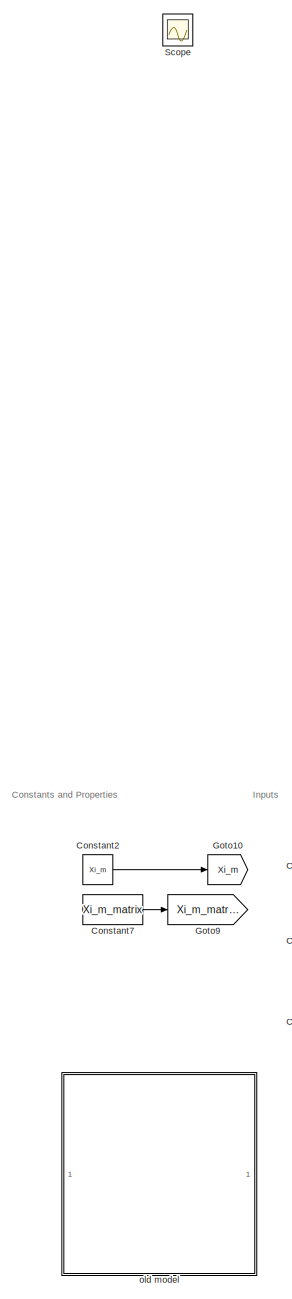
[diagram: root canvas - part 1/2, left side, full height]
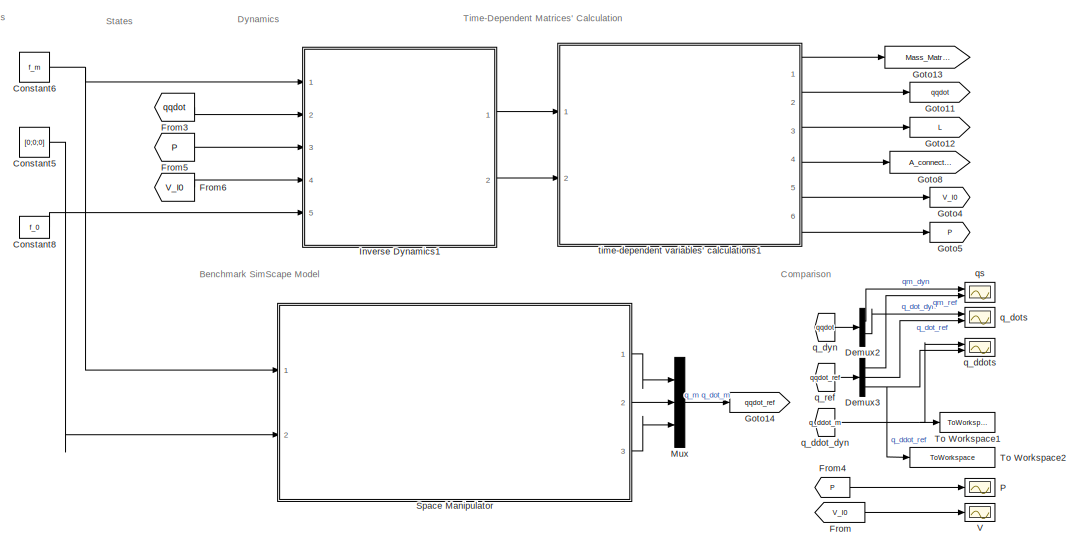
[diagram: root canvas - part 2/2, full width, bottom band]
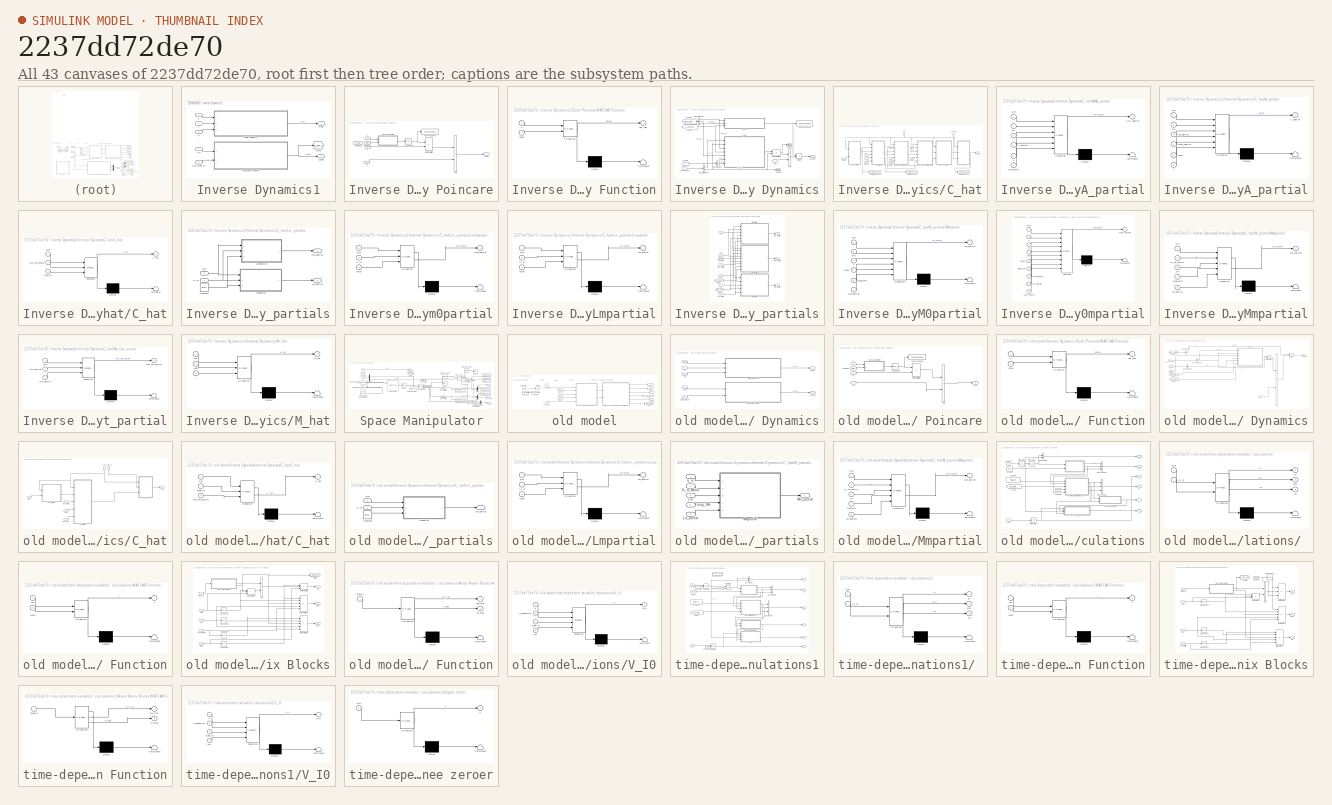
[diagram: thumbnail index - all 43 canvases of the model, root first then tree order]
MODEL slx_2237dd72de70
KIND model
CONFIG AbsTol = auto
CONFIG EnableMultiTasking = on
CONFIG FixedStep = 0.01
CONFIG InitFcn = % ************** Initiate forces\n% f0=[0;0;0;0;0;0];\n% f0=[0;0;0;0;0;0;0];\n%f_0=[0;0;0];\nf_m=[0;1];\nf_e=[0;0;0;0;0;0];\n% ************** Initiate states\nq_m=[0;0];\n%q_dot_m=[0;0];\nP=[0;0;0];\nV_I0=[0;0;0];\n% ************** Load main\n%run(Main.m)
CONFIG MaxStep = auto
CONFIG MinStep = auto
CONFIG RelTol = 1e-3
CONFIG SampleTimeConstraint = Unconstrained
CONFIG SolverName = ode4
CONFIG StartTime = 0.0
CONFIG StopFcn = format long\nqddot=out.qddot.data(:,1)\nqddot_ref=out.qddot_ref.data(1,:)
CONFIG StopTime = 0.01
BLOCK [Constant] Constant2
  Value = Xi_m
  VectorParams1D = off
BLOCK [Constant] Constant5
  Value = [0;0;0]
  VectorParams1D = off
BLOCK [Constant] Constant6
  Value = f_m
  VectorParams1D = off
BLOCK [Constant] Constant7
  Value = Xi_m_matrix
  VectorParams1D = off
BLOCK [Constant] Constant8
  Value = f_0
  VectorParams1D = off
BLOCK [Demux] Demux2
  Outputs = 2
  Ports = [1, 2]
BLOCK [Demux] Demux3
  Outputs = 3
  Ports = [1, 3]
BLOCK [From] From
  GotoTag = V_I0
  TagVisibility = global
BLOCK [From] From3
  GotoTag = qqdot
  TagVisibility = global
BLOCK [From] From4
  GotoTag = P
  TagVisibility = global
BLOCK [From] From5
  GotoTag = P
  TagVisibility = global
BLOCK [From] From6
  GotoTag = V_I0
  TagVisibility = global
BLOCK [Goto] Goto10
  GotoTag = Xi_m
  TagVisibility = global
BLOCK [Goto] Goto11
  GotoTag = qqdot
  TagVisibility = global
BLOCK [Goto] Goto12
  GotoTag = L
  TagVisibility = global
BLOCK [Goto] Goto13
  GotoTag = Mass_Matrix
  TagVisibility = global
BLOCK [Goto] Goto14
  GotoTag = qqdot_ref
  TagVisibility = global
BLOCK [Goto] Goto4
  GotoTag = V_I0
  TagVisibility = global
BLOCK [Goto] Goto5
  GotoTag = P
  TagVisibility = global
BLOCK [Goto] Goto8
  GotoTag = A_connection
  TagVisibility = global
BLOCK [Goto] Goto9
  GotoTag = Xi_m_matrix
  TagVisibility = global
BLOCK [SubSystem] Inverse Dynamics1
  NameLocation = right
  Ports = [5, 2]
  RequestExecContextInheritance = off
BLOCK [SubSystem] Inverse Dynamics1/Euler Poincare
  Ports = [3, 1]
  RequestExecContextInheritance = off
BLOCK [Sum] Inverse Dynamics1/Euler Poincare/Add
  IconShape = rectangular
  Inputs = +-
  Ports = [2, 1]
BLOCK [Constant] Inverse Dynamics1/Euler Poincare/Constant
  Value = iota0
BLOCK [Constant] Inverse Dynamics1/Euler Poincare/Constant1
  Commented = on
  Value = eye(6,6)
BLOCK [SubSystem] Inverse Dynamics1/Euler Poincare/MATLAB Function
  ErrorFcn = Stateflow.Translate.translate
  PermitHierarchicalResolution = ExplicitOnly
  Ports = [2, 1]
  RequestExecContextInheritance = off
  SFBlockType = MATLAB Function
  TreatAsAtomicUnit = on
BLOCK [Demux] Inverse Dynamics1/Euler Poincare/MATLAB Function/ Demux 
  Outputs = 1
  Ports = [1, 1]
BLOCK [S-Function] Inverse Dynamics1/Euler Poincare/MATLAB Function/ SFunction 
  EnableBusSupport = on
  FunctionName = sf_sfun
  PortCounts = [2 2]
  Ports = [2, 2]
  SFcnIsStateOwnerBlock = off
  SFunctionDeploymentMode = off
  Tag = Stateflow S-Function 7
BLOCK [Terminator] Inverse Dynamics1/Euler Poincare/MATLAB Function/ Terminator 
BLOCK [Inport] Inverse Dynamics1/Euler Poincare/MATLAB Function/V
BLOCK [Outport] Inverse Dynamics1/Euler Poincare/MATLAB Function/adj_low
BLOCK [Inport] Inverse Dynamics1/Euler Poincare/MATLAB Function/iota0
  Port = 2
BLOCK [Product] Inverse Dynamics1/Euler Poincare/Matrix Multiply
  Multiplication = Matrix(*)
  Ports = [2, 1]
BLOCK [Inport] Inverse Dynamics1/Euler Poincare/P
BLOCK [Outport] Inverse Dynamics1/Euler Poincare/P_dot
BLOCK [ToWorkspace] Inverse Dynamics1/Euler Poincare/To Workspace
  FixptAsFi = on
  MaxDataPoints = inf
  Ports = [1]
  SampleTime = -1
  SaveFormat = Timeseries
  VariableName = simout
BLOCK [Math] Inverse Dynamics1/Euler Poincare/Transpose
  Operator = transpose
  Ports = [1, 1]
BLOCK [Inport] Inverse Dynamics1/Euler Poincare/V
  Port = 2
BLOCK [Inport] Inverse Dynamics1/Euler Poincare/f_0
  Port = 3
BLOCK [Goto] Inverse Dynamics1/Goto
  GotoTag = q_ddot_m
  TagVisibility = global
BLOCK [SubSystem] Inverse Dynamics1/Internal Dynamics
  Ports = [2, 1]
  RequestExecContextInheritance = off
BLOCK [Sum] Inverse Dynamics1/Internal Dynamics/Add
  IconShape = rectangular
  Inputs = -+
  Ports = [2, 1]
BLOCK [BusSelector] Inverse Dynamics1/Internal Dynamics/Bus Selector1
  OutputSignals = Lm,Lm0
  Ports = [1, 2]
BLOCK [BusSelector] Inverse Dynamics1/Internal Dynamics/Bus Selector2
  OutputSignals = signal1,signal2,signal3
  Ports = [1, 3]
BLOCK [BusSelector] Inverse Dynamics1/Internal Dynamics/Bus Selector3
  OutputSignals = q,q_dot
  Ports = [1, 2]
BLOCK [SubSystem] Inverse Dynamics1/Internal Dynamics/C_hat
  Ports = [7, 1]
  RequestExecContextInheritance = off
BLOCK [Inport] Inverse Dynamics1/Internal Dynamics/C_hat/<Lm>
  Port = 6
BLOCK [Inport] Inverse Dynamics1/Internal Dynamics/C_hat/A
  Port = 4
BLOCK [SubSystem] Inverse Dynamics1/Internal Dynamics/C_hat/AMA_partial
  ErrorFcn = Stateflow.Translate.translate
  PermitHierarchicalResolution = ExplicitOnly
  Ports = [6, 1]
  RequestExecContextInheritance = off
  SFBlockType = MATLAB Function
  TreatAsAtomicUnit = on
BLOCK [Demux] Inverse Dynamics1/Internal Dynamics/C_hat/AMA_partial/ Demux 
  Outputs = 1
  Ports = [1, 1]
BLOCK [S-Function] Inverse Dynamics1/Internal Dynamics/C_hat/AMA_partial/ SFunction 
  EnableBusSupport = on
  FunctionName = sf_sfun
  PortCounts = [6 2]
  Ports = [6, 2]
  SFcnIsStateOwnerBlock = off
  SFunctionDeploymentMode = off
  Tag = Stateflow S-Function 44
BLOCK [Terminator] Inverse Dynamics1/Internal Dynamics/C_hat/AMA_partial/ Terminator 
BLOCK [Inport] Inverse Dynamics1/Internal Dynamics/C_hat/AMA_partial/A
  Port = 3
BLOCK [Outport] Inverse Dynamics1/Internal Dynamics/C_hat/AMA_partial/AMA_partial
BLOCK [Inport] Inverse Dynamics1/Internal Dynamics/C_hat/AMA_partial/A_partial
  Port = 4
BLOCK [Inport] Inverse Dynamics1/Internal Dynamics/C_hat/AMA_partial/M0
  Port = 2
BLOCK [Inport] Inverse Dynamics1/Internal Dynamics/C_hat/AMA_partial/M0_partial
  Port = 6
BLOCK [Inport] Inverse Dynamics1/Internal Dynamics/C_hat/AMA_partial/V
  Port = 5
BLOCK [Inport] Inverse Dynamics1/Internal Dynamics/C_hat/AMA_partial/q_m
BLOCK [SubSystem] Inverse Dynamics1/Internal Dynamics/C_hat/A_partial
  ErrorFcn = Stateflow.Translate.translate
  PermitHierarchicalResolution = ExplicitOnly
  Ports = [6, 1]
  RequestExecContextInheritance = off
  SFBlockType = MATLAB Function
  TreatAsAtomicUnit = on
BLOCK [Demux] Inverse Dynamics1/Internal Dynamics/C_hat/A_partial/ Demux 
  Outputs = 1
  Ports = [1, 1]
BLOCK [S-Function] Inverse Dynamics1/Internal Dynamics/C_hat/A_partial/ SFunction 
  EnableBusSupport = on
  FunctionName = sf_sfun
  PortCounts = [6 2]
  Ports = [6, 2]
  SFcnIsStateOwnerBlock = off
  SFunctionDeploymentMode = off
  Tag = Stateflow S-Function 42
BLOCK [Terminator] Inverse Dynamics1/Internal Dynamics/C_hat/A_partial/ Terminator 
BLOCK [Outport] Inverse Dynamics1/Internal Dynamics/C_hat/A_partial/A_partial
BLOCK [Inport] Inverse Dynamics1/Internal Dynamics/C_hat/A_partial/M0
  Port = 2
BLOCK [Inport] Inverse Dynamics1/Internal Dynamics/C_hat/A_partial/M0_partial
  Port = 3
BLOCK [Inport] Inverse Dynamics1/Internal Dynamics/C_hat/A_partial/M0m
  Port = 5
BLOCK [Inport] Inverse Dynamics1/Internal Dynamics/C_hat/A_partial/M0m_partial
  Port = 4
BLOCK [Inport] Inverse Dynamics1/Internal Dynamics/C_hat/A_partial/V
  Port = 6
BLOCK [Inport] Inverse Dynamics1/Internal Dynamics/C_hat/A_partial/q_m
BLOCK [SubSystem] Inverse Dynamics1/Internal Dynamics/C_hat/C_hat
  ErrorFcn = Stateflow.Translate.translate
  PermitHierarchicalResolution = ExplicitOnly
  Ports = [3, 1]
  RequestExecContextInheritance = off
  SFBlockType = MATLAB Function
  TreatAsAtomicUnit = on
BLOCK [Demux] Inverse Dynamics1/Internal Dynamics/C_hat/C_hat/ Demux 
  Outputs = 1
  Ports = [1, 1]
BLOCK [S-Function] Inverse Dynamics1/Internal Dynamics/C_hat/C_hat/ SFunction 
  EnableBusSupport = on
  FunctionName = sf_sfun
  PortCounts = [3 2]
  Ports = [3, 2]
  SFcnIsStateOwnerBlock = off
  SFunctionDeploymentMode = off
  Tag = Stateflow S-Function 1
BLOCK [Terminator] Inverse Dynamics1/Internal Dynamics/C_hat/C_hat/ Terminator 
BLOCK [Outport] Inverse Dynamics1/Internal Dynamics/C_hat/C_hat/C_hat
BLOCK [Inport] Inverse Dynamics1/Internal Dynamics/C_hat/C_hat/Mm_hat_partial
  Port = 2
BLOCK [Inport] Inverse Dynamics1/Internal Dynamics/C_hat/C_hat/q_dot_m
  Port = 3
BLOCK [Inport] Inverse Dynamics1/Internal Dynamics/C_hat/C_hat/q_m
BLOCK [Outport] Inverse Dynamics1/Internal Dynamics/C_hat/C_hat1
BLOCK [From] Inverse Dynamics1/Internal Dynamics/C_hat/From1
  GotoTag = V_I0
  TagVisibility = global
BLOCK [From] Inverse Dynamics1/Internal Dynamics/C_hat/From2
  GotoTag = V_I0
  TagVisibility = global
BLOCK [From] Inverse Dynamics1/Internal Dynamics/C_hat/From3
  GotoTag = V_I0
  TagVisibility = global
BLOCK [From] Inverse Dynamics1/Internal Dynamics/C_hat/From5
  GotoTag = Xi_m
  TagVisibility = global
BLOCK [Inport] Inverse Dynamics1/Internal Dynamics/C_hat/Lm0
  Port = 7
BLOCK [SubSystem] Inverse Dynamics1/Internal Dynamics/C_hat/Lm_partials
  Ports = [2, 2]
  RequestExecContextInheritance = off
BLOCK [Constant] Inverse Dynamics1/Internal Dynamics/C_hat/Lm_partials/Constant
  Value = iota0
BLOCK [Outport] Inverse Dynamics1/Internal Dynamics/C_hat/Lm_partials/Lm0_partial
  Port = 2
BLOCK [SubSystem] Inverse Dynamics1/Internal Dynamics/C_hat/Lm_partials/Lm0partial
  ErrorFcn = Stateflow.Translate.translate
  PermitHierarchicalResolution = ExplicitOnly
  Ports = [3, 1]
  RequestExecContextInheritance = off
  SFBlockType = MATLAB Function
  TreatAsAtomicUnit = on
BLOCK [Demux] Inverse Dynamics1/Internal Dynamics/C_hat/Lm_partials/Lm0partial/ Demux 
  Outputs = 1
  Ports = [1, 1]
BLOCK [S-Function] Inverse Dynamics1/Internal Dynamics/C_hat/Lm_partials/Lm0partial/ SFunction 
  EnableBusSupport = on
  FunctionName = sf_sfun
  PortCounts = [3 2]
  Ports = [3, 2]
  SFcnIsStateOwnerBlock = off
  SFunctionDeploymentMode = off
  Tag = Stateflow S-Function 31
BLOCK [Terminator] Inverse Dynamics1/Internal Dynamics/C_hat/Lm_partials/Lm0partial/ Terminator 
BLOCK [Outport] Inverse Dynamics1/Internal Dynamics/C_hat/Lm_partials/Lm0partial/Lm0_partial
BLOCK [Inport] Inverse Dynamics1/Internal Dynamics/C_hat/Lm_partials/Lm0partial/Xi_m
  Port = 2
BLOCK [Inport] Inverse Dynamics1/Internal Dynamics/C_hat/Lm_partials/Lm0partial/iota0
  Port = 3
BLOCK [Inport] Inverse Dynamics1/Internal Dynamics/C_hat/Lm_partials/Lm0partial/q_m
BLOCK [Outport] Inverse Dynamics1/Internal Dynamics/C_hat/Lm_partials/Lm_partial
BLOCK [SubSystem] Inverse Dynamics1/Internal Dynamics/C_hat/Lm_partials/Lmpartial
  ErrorFcn = Stateflow.Translate.translate
  PermitHierarchicalResolution = ExplicitOnly
  Ports = [3, 1]
  RequestExecContextInheritance = off
  SFBlockType = MATLAB Function
  TreatAsAtomicUnit = on
BLOCK [Demux] Inverse Dynamics1/Internal Dynamics/C_hat/Lm_partials/Lmpartial/ Demux 
  Outputs = 1
  Ports = [1, 1]
BLOCK [S-Function] Inverse Dynamics1/Internal Dynamics/C_hat/Lm_partials/Lmpartial/ SFunction 
  EnableBusSupport = on
  FunctionName = sf_sfun
  PortCounts = [3 2]
  Ports = [3, 2]
  SFcnIsStateOwnerBlock = off
  SFunctionDeploymentMode = off
  Tag = Stateflow S-Function 2
BLOCK [Terminator] Inverse Dynamics1/Internal Dynamics/C_hat/Lm_partials/Lmpartial/ Terminator 
BLOCK [Outport] Inverse Dynamics1/Internal Dynamics/C_hat/Lm_partials/Lmpartial/Lm_partial
BLOCK [Inport] Inverse Dynamics1/Internal Dynamics/C_hat/Lm_partials/Lmpartial/Xi_m
  Port = 2
BLOCK [Inport] Inverse Dynamics1/Internal Dynamics/C_hat/Lm_partials/Lmpartial/iota0
  Port = 3
BLOCK [Inport] Inverse Dynamics1/Internal Dynamics/C_hat/Lm_partials/Lmpartial/q_m
BLOCK [Inport] Inverse Dynamics1/Internal Dynamics/C_hat/Lm_partials/Xi_m
  Port = 2
BLOCK [Inport] Inverse Dynamics1/Internal Dynamics/C_hat/Lm_partials/q_m
BLOCK [Inport] Inverse Dynamics1/Internal Dynamics/C_hat/M0
  Port = 3
BLOCK [Inport] Inverse Dynamics1/Internal Dynamics/C_hat/M0m
  Port = 5
BLOCK [InportShadow] Inverse Dynamics1/Internal Dynamics/C_hat/M1
  Port = 3
BLOCK [SubSystem] Inverse Dynamics1/Internal Dynamics/C_hat/M_partials
  Ports = [6, 3]
  RequestExecContextInheritance = off
BLOCK [SubSystem] Inverse Dynamics1/Internal Dynamics/C_hat/M_partials/ M0partial
  ErrorFcn = Stateflow.Translate.translate
  PermitHierarchicalResolution = ExplicitOnly
  Ports = [6, 1]
  RequestExecContextInheritance = off
  SFBlockType = MATLAB Function
  TreatAsAtomicUnit = on
BLOCK [Demux] Inverse Dynamics1/Internal Dynamics/C_hat/M_partials/ M0partial/ Demux 
  Outputs = 1
  Ports = [1, 1]
BLOCK [S-Function] Inverse Dynamics1/Internal Dynamics/C_hat/M_partials/ M0partial/ SFunction 
  EnableBusSupport = on
  FunctionName = sf_sfun
  PortCounts = [6 2]
  Ports = [6, 2]
  SFcnIsStateOwnerBlock = off
  SFunctionDeploymentMode = off
  Tag = Stateflow S-Function 38
BLOCK [Terminator] Inverse Dynamics1/Internal Dynamics/C_hat/M_partials/ M0partial/ Terminator 
BLOCK [Inport] Inverse Dynamics1/Internal Dynamics/C_hat/M_partials/ M0partial/Lm0
  Port = 2
BLOCK [Inport] Inverse Dynamics1/Internal Dynamics/C_hat/M_partials/ M0partial/Lm0_partial
  Port = 6
BLOCK [Outport] Inverse Dynamics1/Internal Dynamics/C_hat/M_partials/ M0partial/M0_partial
BLOCK [Inport] Inverse Dynamics1/Internal Dynamics/C_hat/M_partials/ M0partial/V
  Port = 3
BLOCK [Inport] Inverse Dynamics1/Internal Dynamics/C_hat/M_partials/ M0partial/diag_Mm
  Port = 5
BLOCK [Inport] Inverse Dynamics1/Internal Dynamics/C_hat/M_partials/ M0partial/iota0
  Port = 4
BLOCK [Inport] Inverse Dynamics1/Internal Dynamics/C_hat/M_partials/ M0partial/q_m
BLOCK [Constant] Inverse Dynamics1/Internal Dynamics/C_hat/M_partials/Constant
  Value = iota0
BLOCK [From] Inverse Dynamics1/Internal Dynamics/C_hat/M_partials/From6
  GotoTag = Xi_m_matrix
  TagVisibility = global
BLOCK [From] Inverse Dynamics1/Internal Dynamics/C_hat/M_partials/From8
  GotoTag = diag_Mm
  TagVisibility = global
BLOCK [Inport] Inverse Dynamics1/Internal Dynamics/C_hat/M_partials/Lm
  Port = 4
BLOCK [Inport] Inverse Dynamics1/Internal Dynamics/C_hat/M_partials/Lm0
  Port = 5
BLOCK [Inport] Inverse Dynamics1/Internal Dynamics/C_hat/M_partials/Lm0_partial
  Port = 3
BLOCK [Inport] Inverse Dynamics1/Internal Dynamics/C_hat/M_partials/Lm_partial
  Port = 2
BLOCK [Outport] Inverse Dynamics1/Internal Dynamics/C_hat/M_partials/M0_partial
BLOCK [Outport] Inverse Dynamics1/Internal Dynamics/C_hat/M_partials/M0m_partial
  Port = 2
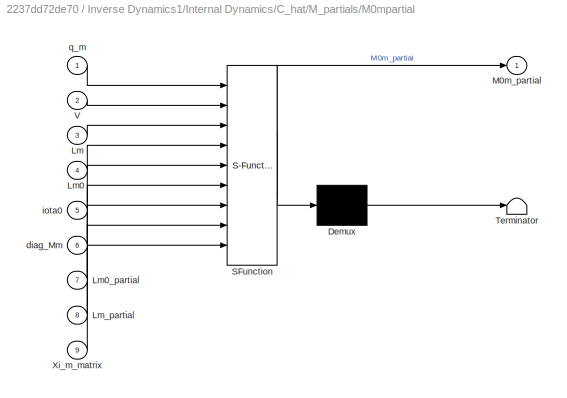
BLOCK [SubSystem] Inverse Dynamics1/Internal Dynamics/C_hat/M_partials/M0mpartial
  ErrorFcn = Stateflow.Translate.translate
  PermitHierarchicalResolution = ExplicitOnly
  Ports = [9, 1]
  RequestExecContextInheritance = off
  SFBlockType = MATLAB Function
  TreatAsAtomicUnit = on
BLOCK [Demux] Inverse Dynamics1/Internal Dynamics/C_hat/M_partials/M0mpartial/ Demux 
  Outputs = 1
  Ports = [1, 1]
BLOCK [S-Function] Inverse Dynamics1/Internal Dynamics/C_hat/M_partials/M0mpartial/ SFunction 
  EnableBusSupport = on
  FunctionName = sf_sfun
  PortCounts = [9 2]
  Ports = [9, 2]
  SFcnIsStateOwnerBlock = off
  SFunctionDeploymentMode = off
  Tag = Stateflow S-Function 39
BLOCK [Terminator] Inverse Dynamics1/Internal Dynamics/C_hat/M_partials/M0mpartial/ Terminator 
BLOCK [Inport] Inverse Dynamics1/Internal Dynamics/C_hat/M_partials/M0mpartial/Lm
  Port = 3
BLOCK [Inport] Inverse Dynamics1/Internal Dynamics/C_hat/M_partials/M0mpartial/Lm0
  Port = 4
BLOCK [Inport] Inverse Dynamics1/Internal Dynamics/C_hat/M_partials/M0mpartial/Lm0_partial
  Port = 7
BLOCK [Inport] Inverse Dynamics1/Internal Dynamics/C_hat/M_partials/M0mpartial/Lm_partial
  Port = 8
BLOCK [Outport] Inverse Dynamics1/Internal Dynamics/C_hat/M_partials/M0mpartial/M0m_partial
BLOCK [Inport] Inverse Dynamics1/Internal Dynamics/C_hat/M_partials/M0mpartial/V
  Port = 2
BLOCK [Inport] Inverse Dynamics1/Internal Dynamics/C_hat/M_partials/M0mpartial/Xi_m_matrix
  Port = 9
BLOCK [Inport] Inverse Dynamics1/Internal Dynamics/C_hat/M_partials/M0mpartial/diag_Mm
  Port = 6
BLOCK [Inport] Inverse Dynamics1/Internal Dynamics/C_hat/M_partials/M0mpartial/iota0
  Port = 5
BLOCK [Inport] Inverse Dynamics1/Internal Dynamics/C_hat/M_partials/M0mpartial/q_m
BLOCK [Outport] Inverse Dynamics1/Internal Dynamics/C_hat/M_partials/Mm_partial
  Port = 3
BLOCK [SubSystem] Inverse Dynamics1/Internal Dynamics/C_hat/M_partials/Mmpartial
  ErrorFcn = Stateflow.Translate.translate
  PermitHierarchicalResolution = ExplicitOnly
  Ports = [5, 1]
  RequestExecContextInheritance = off
  SFBlockType = MATLAB Function
  TreatAsAtomicUnit = on
BLOCK [Demux] Inverse Dynamics1/Internal Dynamics/C_hat/M_partials/Mmpartial/ Demux 
  Outputs = 1
  Ports = [1, 1]
BLOCK [S-Function] Inverse Dynamics1/Internal Dynamics/C_hat/M_partials/Mmpartial/ SFunction 
  EnableBusSupport = on
  FunctionName = sf_sfun
  PortCounts = [5 2]
  Ports = [5, 2]
  SFcnIsStateOwnerBlock = off
  SFunctionDeploymentMode = off
  Tag = Stateflow S-Function 3
BLOCK [Terminator] Inverse Dynamics1/Internal Dynamics/C_hat/M_partials/Mmpartial/ Terminator 
BLOCK [Inport] Inverse Dynamics1/Internal Dynamics/C_hat/M_partials/Mmpartial/Lm
  Port = 3
BLOCK [Inport] Inverse Dynamics1/Internal Dynamics/C_hat/M_partials/Mmpartial/Lm_partial
  Port = 5
BLOCK [Outport] Inverse Dynamics1/Internal Dynamics/C_hat/M_partials/Mmpartial/Mm_partial
BLOCK [Inport] Inverse Dynamics1/Internal Dynamics/C_hat/M_partials/Mmpartial/Xi_m_matrix
  Port = 2
BLOCK [Inport] Inverse Dynamics1/Internal Dynamics/C_hat/M_partials/Mmpartial/diag_Mm
  Port = 4
BLOCK [Inport] Inverse Dynamics1/Internal Dynamics/C_hat/M_partials/Mmpartial/q_m
BLOCK [Inport] Inverse Dynamics1/Internal Dynamics/C_hat/M_partials/V
  Port = 6
BLOCK [Inport] Inverse Dynamics1/Internal Dynamics/C_hat/M_partials/q_m
BLOCK [SubSystem] Inverse Dynamics1/Internal Dynamics/C_hat/Mm_hat_partial
  ErrorFcn = Stateflow.Translate.translate
  PermitHierarchicalResolution = ExplicitOnly
  Ports = [3, 1]
  RequestExecContextInheritance = off
  SFBlockType = MATLAB Function
  TreatAsAtomicUnit = on
BLOCK [Demux] Inverse Dynamics1/Internal Dynamics/C_hat/Mm_hat_partial/ Demux 
  Outputs = 1
  Ports = [1, 1]
BLOCK [S-Function] Inverse Dynamics1/Internal Dynamics/C_hat/Mm_hat_partial/ SFunction 
  EnableBusSupport = on
  FunctionName = sf_sfun
  PortCounts = [3 2]
  Ports = [3, 2]
  SFcnIsStateOwnerBlock = off
  SFunctionDeploymentMode = off
  Tag = Stateflow S-Function 45
BLOCK [Terminator] Inverse Dynamics1/Internal Dynamics/C_hat/Mm_hat_partial/ Terminator 
BLOCK [Inport] Inverse Dynamics1/Internal Dynamics/C_hat/Mm_hat_partial/AMA_partial
  Port = 2
BLOCK [Outport] Inverse Dynamics1/Internal Dynamics/C_hat/Mm_hat_partial/Mm_hat_partial
BLOCK [Inport] Inverse Dynamics1/Internal Dynamics/C_hat/Mm_hat_partial/Mm_partial
  Port = 3
BLOCK [Inport] Inverse Dynamics1/Internal Dynamics/C_hat/Mm_hat_partial/q_m
BLOCK [ToWorkspace] Inverse Dynamics1/Internal Dynamics/C_hat/To Workspace
  FixptAsFi = on
  MaxDataPoints = inf
  Ports = [1]
  SampleTime = -1
  SaveFormat = Timeseries
  VariableName = mpart
BLOCK [ToWorkspace] Inverse Dynamics1/Internal Dynamics/C_hat/To Workspace1
  FixptAsFi = on
  MaxDataPoints = inf
  Ports = [1]
  SampleTime = -1
  SaveFormat = Timeseries
  VariableName = chat
BLOCK [ToWorkspace] Inverse Dynamics1/Internal Dynamics/C_hat/To Workspace2
  FixptAsFi = on
  MaxDataPoints = inf
  Ports = [1]
  SampleTime = -1
  SaveFormat = Timeseries
  VariableName = Lpart
BLOCK [Inport] Inverse Dynamics1/Internal Dynamics/C_hat/q_dot_m
  NameLocation = left
  Port = 2
BLOCK [Inport] Inverse Dynamics1/Internal Dynamics/C_hat/q_m
  NameLocation = left
BLOCK [Product] Inverse Dynamics1/Internal Dynamics/Divide
  Inputs = /*
  Multiplication = Matrix(*)
  Ports = [2, 1]
BLOCK [From] Inverse Dynamics1/Internal Dynamics/From
  GotoTag = A_connection
  TagVisibility = global
BLOCK [From] Inverse Dynamics1/Internal Dynamics/From2
  GotoTag = Mass_Matrix
  TagVisibility = global
BLOCK [From] Inverse Dynamics1/Internal Dynamics/From4
  GotoTag = L
  TagVisibility = global
BLOCK [SubSystem] Inverse Dynamics1/Internal Dynamics/M_hat
  ErrorFcn = Stateflow.Translate.translate
  PermitHierarchicalResolution = ExplicitOnly
  Ports = [3, 1]
  RequestExecContextInheritance = off
  SFBlockType = MATLAB Function
  TreatAsAtomicUnit = on
BLOCK [Demux] Inverse Dynamics1/Internal Dynamics/M_hat/ Demux 
  Outputs = 1
  Ports = [1, 1]
BLOCK [S-Function] Inverse Dynamics1/Internal Dynamics/M_hat/ SFunction 
  EnableBusSupport = on
  FunctionName = sf_sfun
  PortCounts = [3 2]
  Ports = [3, 2]
  SFcnIsStateOwnerBlock = off
  SFunctionDeploymentMode = off
  Tag = Stateflow S-Function 32
BLOCK [Terminator] Inverse Dynamics1/Internal Dynamics/M_hat/ Terminator 
BLOCK [Inport] Inverse Dynamics1/Internal Dynamics/M_hat/A
  Port = 3
BLOCK [Inport] Inverse Dynamics1/Internal Dynamics/M_hat/M0
BLOCK [Outport] Inverse Dynamics1/Internal Dynamics/M_hat/M_hat
BLOCK [Inport] Inverse Dynamics1/Internal Dynamics/M_hat/Mm
  Port = 2
BLOCK [Product] Inverse Dynamics1/Internal Dynamics/Matrix Multiply3
  Multiplication = Matrix(*)
  Ports = [2, 1]
BLOCK [Scope] Inverse Dynamics1/Internal Dynamics/Scope
  Floating = off
  NumInputPorts = 1
  Ports = [1]
  ScopeSpecificationString = Simulink.scopes.TimeScopeBlockCfg('CurrentConfiguration', extmgr.ConfigurationSet(extmgr.Configuration('Core','General UI',true),extmgr.Configuration('Core','Source UI',true),extmgr.Configuration('Sources','WiredSimulink',true,'DataLoggingVariableName','ScopeData4'),extmgr.Configuration('Visuals','Time Domain',true,'SerializedDisplays',{struct('MinYLimReal','-0.00000000000005','MaxYLimReal','0.000...<+1512ch>
BLOCK [Scope] Inverse Dynamics1/Internal Dynamics/Scope1
  Floating = off
  NumInputPorts = 1
  Ports = [1]
  ScopeSpecificationString = Simulink.scopes.TimeScopeBlockCfg('CurrentConfiguration', extmgr.ConfigurationSet(extmgr.Configuration('Core','General UI',true),extmgr.Configuration('Core','Source UI',true),extmgr.Configuration('Sources','WiredSimulink',true,'DataLoggingVariableName','ScopeData5'),extmgr.Configuration('Visuals','Time Domain',true,'SerializedDisplays',{struct('MinYLimReal','-0.00009','MaxYLimReal','0.00085','YLab...<+1380ch>
BLOCK [ToWorkspace] Inverse Dynamics1/Internal Dynamics/To Workspace1
  FixptAsFi = on
  MaxDataPoints = inf
  Ports = [1]
  SampleTime = -1
  SaveFormat = Timeseries
  VariableName = mhat
BLOCK [Inport] Inverse Dynamics1/Internal Dynamics/f_m
BLOCK [Outport] Inverse Dynamics1/Internal Dynamics/q_ddot
BLOCK [Inport] Inverse Dynamics1/Internal Dynamics/q_m q_dot_m
  Port = 2
BLOCK [Inport] Inverse Dynamics1/P
  Port = 3
BLOCK [Outport] Inverse Dynamics1/P_dot
  Port = 2
BLOCK [Inport] Inverse Dynamics1/V
  Port = 4
BLOCK [Inport] Inverse Dynamics1/f_0
  Port = 5
BLOCK [Inport] Inverse Dynamics1/f_m
BLOCK [Outport] Inverse Dynamics1/q_ddot
BLOCK [Inport] Inverse Dynamics1/q_m q_dot_m
  Port = 2
BLOCK [Mux] Mux
  DisplayOption = bar
  Inputs = 3
  Ports = [3, 1]
BLOCK [Scope] P
  Floating = off
  NumInputPorts = 1
  Ports = [1]
  ScopeSpecificationString = Simulink.scopes.TimeScopeBlockCfg('CurrentConfiguration', extmgr.ConfigurationSet(extmgr.Configuration('Core','General UI',true),extmgr.Configuration('Core','Source UI',true),extmgr.Configuration('Sources','WiredSimulink',true,'DataLoggingVariableName','ScopeData6'),extmgr.Configuration('Visuals','Time Domain',true,'SerializedDisplays',{struct('MinYLimReal','-1.00000','MaxYLimReal','1.00000','YLab...<+1765ch>
BLOCK [Scope] Scope
  Floating = off
  IOType = viewer
  NumInputPorts = 1
  Ports = []
  ScopeSpecificationString = Simulink.scopes.TimeScopeBlockCfg('CurrentConfiguration', extmgr.ConfigurationSet(extmgr.Configuration('Core','General UI',true),extmgr.Configuration('Core','Source UI',true),extmgr.Configuration('Sources','WiredSimulink',true),extmgr.Configuration('Visuals','Time Domain',true,'SerializedDisplays',{struct('MinYLimReal','-10','MaxYLimReal','10','YLabelReal','','MinYLimMag','0','MaxYLimMag','10','Le...<+777ch>
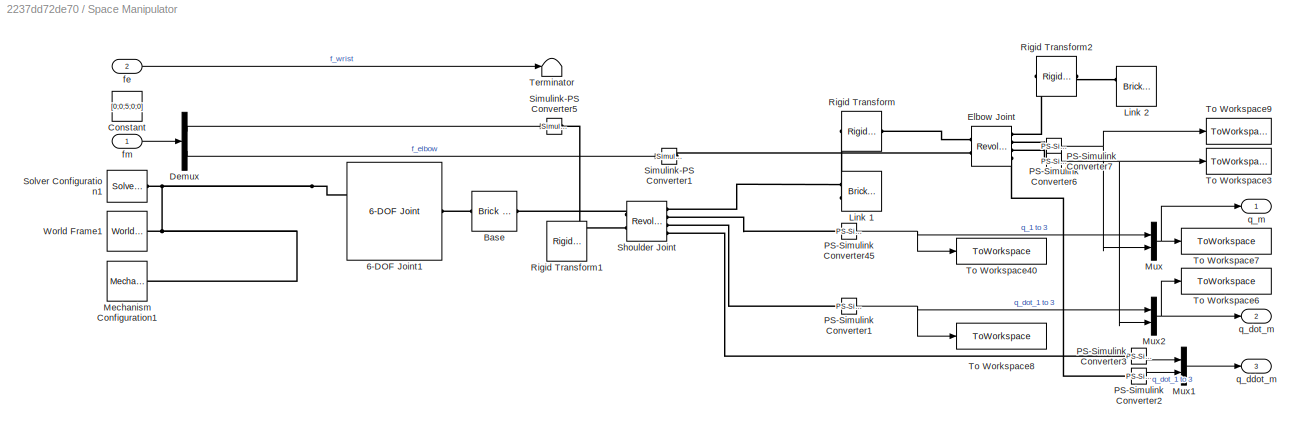
BLOCK [SubSystem] Space Manipulator
  Ports = [2, 3]
  RequestExecContextInheritance = off
BLOCK [Reference] Space Manipulator/6-DOF Joint1  REF=sm_lib/Joints/6-DOF Joint
  Ports = [0, 0, 0, 0, 0, 2, 1]
  SourceBlock = sm_lib/Joints/6-DOF Joint
  SourceProductBaseCode = MS
  SourceType = 6-DOF Joint
BLOCK [Reference] Space Manipulator/Base  REF=sm_lib/Body Elements/Brick Solid
  Ports = [0, 0, 0, 0, 0, 1, 1]
  SourceBlock = sm_lib/Body Elements/Brick Solid
  SourceProductBaseCode = MS
  SourceType = Brick Solid
BLOCK [Constant] Space Manipulator/Constant
  Commented = on
  Value = [0;0;5;0;0]
BLOCK [Demux] Space Manipulator/Demux
  Outputs = 2
  Ports = [1, 2]
BLOCK [Reference] Space Manipulator/Elbow Joint  REF=sm_lib/Joints/Revolute Joint
  Ports = [0, 0, 0, 0, 0, 2, 4]
  SourceBlock = sm_lib/Joints/Revolute Joint
  SourceProductBaseCode = MS
  SourceType = Revolute Joint
BLOCK [Reference] Space Manipulator/Link 1   REF=sm_lib/Body Elements/Brick Solid
  Ports = [0, 0, 0, 0, 0, 2, 1]
  SourceBlock = sm_lib/Body Elements/Brick Solid
  SourceProductBaseCode = MS
  SourceType = Brick Solid
BLOCK [Reference] Space Manipulator/Link 2  REF=sm_lib/Body Elements/Brick Solid
  Ports = [0, 0, 0, 0, 0, 2, 1]
  SourceBlock = sm_lib/Body Elements/Brick Solid
  SourceProductBaseCode = MS
  SourceType = Brick Solid
BLOCK [Reference] Space Manipulator/Mechanism Configuration1  REF=sm_lib/Utilities/Mechanism
Configuration
  Ports = [0, 0, 0, 0, 0, 0, 1]
  SourceBlock = sm_lib/Utilities/Mechanism\nConfiguration
  SourceProductBaseCode = MS
  SourceType = Mechanism\nConfiguration
BLOCK [Mux] Space Manipulator/Mux
  DisplayOption = bar
  Inputs = 2
  Ports = [2, 1]
BLOCK [Mux] Space Manipulator/Mux1
  DisplayOption = bar
  Inputs = 2
  Ports = [2, 1]
BLOCK [Mux] Space Manipulator/Mux2
  DisplayOption = bar
  Inputs = 2
  Ports = [2, 1]
BLOCK [Reference] Space Manipulator/PS-Simulink Converter1  REF=nesl_utility/PS-Simulink
Converter
  Ports = [0, 1, 0, 0, 0, 1]
  SourceBlock = nesl_utility/PS-Simulink\nConverter
  SourceProductBaseCode = PW,SS
  SourceType = PS-Simulink\nConverter
BLOCK [Reference] Space Manipulator/PS-Simulink Converter2  REF=nesl_utility/PS-Simulink
Converter
  Ports = [0, 1, 0, 0, 0, 1]
  SourceBlock = nesl_utility/PS-Simulink\nConverter
  SourceProductBaseCode = PW,SS
  SourceType = PS-Simulink\nConverter
BLOCK [Reference] Space Manipulator/PS-Simulink Converter3  REF=nesl_utility/PS-Simulink
Converter
  Ports = [0, 1, 0, 0, 0, 1]
  SourceBlock = nesl_utility/PS-Simulink\nConverter
  SourceProductBaseCode = PW,SS
  SourceType = PS-Simulink\nConverter
BLOCK [Reference] Space Manipulator/PS-Simulink Converter45  REF=nesl_utility/PS-Simulink
Converter
  Ports = [0, 1, 0, 0, 0, 1]
  SourceBlock = nesl_utility/PS-Simulink\nConverter
  SourceProductBaseCode = PW,SS
  SourceType = PS-Simulink\nConverter
BLOCK [Reference] Space Manipulator/PS-Simulink Converter6  REF=nesl_utility/PS-Simulink
Converter
  Ports = [0, 1, 0, 0, 0, 1]
  SourceBlock = nesl_utility/PS-Simulink\nConverter
  SourceProductBaseCode = PW,SS
  SourceType = PS-Simulink\nConverter
BLOCK [Reference] Space Manipulator/PS-Simulink Converter7  REF=nesl_utility/PS-Simulink
Converter
  Ports = [0, 1, 0, 0, 0, 1]
  SourceBlock = nesl_utility/PS-Simulink\nConverter
  SourceProductBaseCode = PW,SS
  SourceType = PS-Simulink\nConverter
BLOCK [Reference] Space Manipulator/Rigid Transform  REF=sm_lib/Frames and
Transforms/Rigid
Transform
  Ports = [0, 0, 0, 0, 0, 1, 1]
  SourceBlock = sm_lib/Frames and\nTransforms/Rigid\nTransform
  SourceProductBaseCode = MS
  SourceType = Rigid\nTransform
BLOCK [Reference] Space Manipulator/Rigid Transform1  REF=sm_lib/Frames and
Transforms/Rigid
Transform
  Commented = on
  Ports = [0, 0, 0, 0, 0, 1, 1]
  SourceBlock = sm_lib/Frames and\nTransforms/Rigid\nTransform
  SourceProductBaseCode = MS
  SourceType = Rigid\nTransform
BLOCK [Reference] Space Manipulator/Rigid Transform2  REF=sm_lib/Frames and
Transforms/Rigid
Transform
  Ports = [0, 0, 0, 0, 0, 1, 1]
  SourceBlock = sm_lib/Frames and\nTransforms/Rigid\nTransform
  SourceProductBaseCode = MS
  SourceType = Rigid\nTransform
BLOCK [Reference] Space Manipulator/Shoulder Joint  REF=sm_lib/Joints/Revolute Joint
  Ports = [0, 0, 0, 0, 0, 2, 4]
  SourceBlock = sm_lib/Joints/Revolute Joint
  SourceProductBaseCode = MS
  SourceType = Revolute Joint
BLOCK [Reference] Space Manipulator/Simulink-PS Converter1  REF=nesl_utility/Simulink-PS
Converter
  Ports = [1, 0, 0, 0, 0, 0, 1]
  SourceBlock = nesl_utility/Simulink-PS\nConverter
  SourceProductBaseCode = PW,SS
  SourceType = Simulink-PS\nConverter
BLOCK [Reference] Space Manipulator/Simulink-PS Converter5  REF=nesl_utility/Simulink-PS
Converter
  Ports = [1, 0, 0, 0, 0, 0, 1]
  SourceBlock = nesl_utility/Simulink-PS\nConverter
  SourceProductBaseCode = PW,SS
  SourceType = Simulink-PS\nConverter
BLOCK [Reference] Space Manipulator/Solver Configuration1  REF=nesl_utility/Solver
Configuration
  Ports = [0, 0, 0, 0, 0, 0, 1]
  SourceBlock = nesl_utility/Solver\nConfiguration
  SourceProductBaseCode = PW,SS
  SourceType = Solver\nConfiguration
BLOCK [Terminator] Space Manipulator/Terminator
BLOCK [ToWorkspace] Space Manipulator/To Workspace3
  FixptAsFi = on
  MaxDataPoints = inf
  Ports = [1]
  SampleTime = -1
  VariableName = q_dot_elbow
BLOCK [ToWorkspace] Space Manipulator/To Workspace40
  FixptAsFi = on
  MaxDataPoints = inf
  Ports = [1]
  SampleTime = -1
  VariableName = q_shoulder
BLOCK [ToWorkspace] Space Manipulator/To Workspace6
  FixptAsFi = on
  MaxDataPoints = inf
  Ports = [1]
  SampleTime = -1
  VariableName = q_dot_m
BLOCK [ToWorkspace] Space Manipulator/To Workspace7
  FixptAsFi = on
  MaxDataPoints = inf
  Ports = [1]
  SampleTime = -1
  VariableName = q_m
BLOCK [ToWorkspace] Space Manipulator/To Workspace8
  FixptAsFi = on
  MaxDataPoints = inf
  Ports = [1]
  SampleTime = -1
  VariableName = q_dot_shoulder
BLOCK [ToWorkspace] Space Manipulator/To Workspace9
  FixptAsFi = on
  MaxDataPoints = inf
  Ports = [1]
  SampleTime = -1
  VariableName = q_elbow
BLOCK [Reference] Space Manipulator/World Frame1  REF=sm_lib/Frames and
Transforms/World Frame
  Ports = [0, 0, 0, 0, 0, 0, 1]
  SourceBlock = sm_lib/Frames and\nTransforms/World Frame
  SourceProductBaseCode = MS
  SourceType = World Frame
BLOCK [Inport] Space Manipulator/fe
  Port = 2
BLOCK [Inport] Space Manipulator/fm
BLOCK [Outport] Space Manipulator/q_ddot_m
  Port = 3
BLOCK [Outport] Space Manipulator/q_dot_m
  Port = 2
BLOCK [Outport] Space Manipulator/q_m
BLOCK [ToWorkspace] To Workspace1
  FixptAsFi = on
  MaxDataPoints = inf
  Ports = [1]
  SampleTime = -1
  SaveFormat = Timeseries
  VariableName = qddot
BLOCK [ToWorkspace] To Workspace2
  FixptAsFi = on
  MaxDataPoints = inf
  Ports = [1]
  SampleTime = -1
  SaveFormat = Timeseries
  VariableName = qddot_ref
BLOCK [Scope] V
  Floating = off
  NumInputPorts = 1
  Ports = [1]
  ScopeSpecificationString = Simulink.scopes.TimeScopeBlockCfg('CurrentConfiguration', extmgr.ConfigurationSet(extmgr.Configuration('Core','General UI',true),extmgr.Configuration('Core','Source UI',true),extmgr.Configuration('Sources','WiredSimulink',true,'DataLoggingVariableName','ScopeData7'),extmgr.Configuration('Visuals','Time Domain',true,'SerializedDisplays',{struct('MinYLimReal','-1.00000','MaxYLimReal','1.00000','YLab...<+1657ch>
BLOCK [SubSystem] old model
  Commented = on
  Ports = []
  RequestExecContextInheritance = off
BLOCK [Constant] old model/Constant
  Commented = on
  Value = Xi_m
  VectorParams1D = off
BLOCK [Constant] old model/Constant1
  Commented = on
  Value = f_0
  VectorParams1D = off
BLOCK [Constant] old model/Constant3
  Commented = on
  Value = [0.1;0.1]
  VectorParams1D = off
BLOCK [Constant] old model/Constant4
  Commented = on
  Value = Xi_m_matrix
  VectorParams1D = off
BLOCK [From] old model/From
  Commented = on
  GotoTag = qqdot
  TagVisibility = global
BLOCK [From] old model/From1
  Commented = on
  GotoTag = V_I0
  TagVisibility = global
BLOCK [From] old model/From2
  Commented = on
  GotoTag = P
  TagVisibility = global
BLOCK [Goto] old model/Goto1
  Commented = on
  GotoTag = Xi_m_matrix
  TagVisibility = global
BLOCK [Goto] old model/Goto15
  Commented = on
  GotoTag = L
  TagVisibility = global
BLOCK [Goto] old model/Goto16
  Commented = on
  GotoTag = Mass_Matrix
  TagVisibility = global
BLOCK [Goto] old model/Goto17
  Commented = on
  GotoTag = A_connection
  TagVisibility = global
BLOCK [Goto] old model/Goto2
  Commented = on
  GotoTag = Xi_m
  TagVisibility = global
BLOCK [Goto] old model/Goto3
  Commented = on
  GotoTag = qqdot
  TagVisibility = global
BLOCK [Goto] old model/Goto6
  Commented = on
  GotoTag = V_I0
  TagVisibility = global
BLOCK [Goto] old model/Goto7
  Commented = on
  GotoTag = P
  TagVisibility = global
BLOCK [SubSystem] old model/Inverse Dynamics
  Commented = on
  NameLocation = right
  Ports = [5, 2]
  RequestExecContextInheritance = off
BLOCK [SubSystem] old model/Inverse Dynamics/Euler Poincare
  Ports = [3, 1]
  RequestExecContextInheritance = off
BLOCK [Sum] old model/Inverse Dynamics/Euler Poincare/Add
  IconShape = rectangular
  Inputs = +-
  Ports = [2, 1]
BLOCK [Constant] old model/Inverse Dynamics/Euler Poincare/Constant
  Value = iota0
BLOCK [SubSystem] old model/Inverse Dynamics/Euler Poincare/MATLAB Function
  ErrorFcn = Stateflow.Translate.translate
  PermitHierarchicalResolution = ExplicitOnly
  Ports = [2, 1]
  RequestExecContextInheritance = off
  SFBlockType = MATLAB Function
  TreatAsAtomicUnit = on
BLOCK [Demux] old model/Inverse Dynamics/Euler Poincare/MATLAB Function/ Demux 
  Outputs = 1
  Ports = [1, 1]
BLOCK [S-Function] old model/Inverse Dynamics/Euler Poincare/MATLAB Function/ SFunction 
  EnableBusSupport = on
  FunctionName = sf_sfun
  PortCounts = [2 2]
  Ports = [2, 2]
  SFcnIsStateOwnerBlock = off
  SFunctionDeploymentMode = off
  Tag = Stateflow S-Function 24
BLOCK [Terminator] old model/Inverse Dynamics/Euler Poincare/MATLAB Function/ Terminator 
BLOCK [Inport] old model/Inverse Dynamics/Euler Poincare/MATLAB Function/V
BLOCK [Outport] old model/Inverse Dynamics/Euler Poincare/MATLAB Function/adj_low
BLOCK [Inport] old model/Inverse Dynamics/Euler Poincare/MATLAB Function/iota0
  Port = 2
BLOCK [Product] old model/Inverse Dynamics/Euler Poincare/Matrix Multiply
  Multiplication = Matrix(*)
  Ports = [2, 1]
BLOCK [Inport] old model/Inverse Dynamics/Euler Poincare/P
BLOCK [Outport] old model/Inverse Dynamics/Euler Poincare/P_dot
BLOCK [ToWorkspace] old model/Inverse Dynamics/Euler Poincare/To Workspace
  FixptAsFi = on
  MaxDataPoints = inf
  Ports = [1]
  SampleTime = -1
  SaveFormat = Timeseries
  VariableName = simout
BLOCK [Math] old model/Inverse Dynamics/Euler Poincare/Transpose
  Operator = transpose
  Ports = [1, 1]
BLOCK [Inport] old model/Inverse Dynamics/Euler Poincare/V
  Port = 2
BLOCK [Inport] old model/Inverse Dynamics/Euler Poincare/f_0
  Port = 3
BLOCK [SubSystem] old model/Inverse Dynamics/Internal Dynamics
  Ports = [2, 1]
  RequestExecContextInheritance = off
BLOCK [Sum] old model/Inverse Dynamics/Internal Dynamics/Add
  IconShape = rectangular
  Inputs = -+
  Ports = [2, 1]
BLOCK [BusSelector] old model/Inverse Dynamics/Internal Dynamics/Bus Selector1
  OutputSignals = Lm
  Ports = [1, 1]
BLOCK [BusSelector] old model/Inverse Dynamics/Internal Dynamics/Bus Selector2
  OutputSignals = signal3
  Ports = [1, 1]
BLOCK [BusSelector] old model/Inverse Dynamics/Internal Dynamics/Bus Selector3
  OutputSignals = signal1,signal2
  Ports = [1, 2]
BLOCK [SubSystem] old model/Inverse Dynamics/Internal Dynamics/C_hat
  Ports = [6, 1]
  RequestExecContextInheritance = off
BLOCK [Inport] old model/Inverse Dynamics/Internal Dynamics/C_hat/<Lm>
  Port = 5
BLOCK [SubSystem] old model/Inverse Dynamics/Internal Dynamics/C_hat/C_hat
  ErrorFcn = Stateflow.Translate.translate
  PermitHierarchicalResolution = ExplicitOnly
  Ports = [3, 1]
  RequestExecContextInheritance = off
  SFBlockType = MATLAB Function
  TreatAsAtomicUnit = on
BLOCK [Demux] old model/Inverse Dynamics/Internal Dynamics/C_hat/C_hat/ Demux 
  Outputs = 1
  Ports = [1, 1]
BLOCK [S-Function] old model/Inverse Dynamics/Internal Dynamics/C_hat/C_hat/ SFunction 
  EnableBusSupport = on
  FunctionName = sf_sfun
  PortCounts = [3 2]
  Ports = [3, 2]
  SFcnIsStateOwnerBlock = off
  SFunctionDeploymentMode = off
  Tag = Stateflow S-Function 30
BLOCK [Terminator] old model/Inverse Dynamics/Internal Dynamics/C_hat/C_hat/ Terminator 
BLOCK [Outport] old model/Inverse Dynamics/Internal Dynamics/C_hat/C_hat/C_hat
BLOCK [Inport] old model/Inverse Dynamics/Internal Dynamics/C_hat/C_hat/Mm_hat_partial
  Port = 3
BLOCK [Inport] old model/Inverse Dynamics/Internal Dynamics/C_hat/C_hat/q_dot_m
  Port = 2
BLOCK [Inport] old model/Inverse Dynamics/Internal Dynamics/C_hat/C_hat/q_m
BLOCK [Outport] old model/Inverse Dynamics/Internal Dynamics/C_hat/C_hat1
BLOCK [SubSystem] old model/Inverse Dynamics/Internal Dynamics/C_hat/Lm_partials
  Ports = [2, 1]
  RequestExecContextInheritance = off
BLOCK [Constant] old model/Inverse Dynamics/Internal Dynamics/C_hat/Lm_partials/Constant
  Value = iota0
BLOCK [Outport] old model/Inverse Dynamics/Internal Dynamics/C_hat/Lm_partials/Lm_partial
BLOCK [SubSystem] old model/Inverse Dynamics/Internal Dynamics/C_hat/Lm_partials/Lmpartial
  ErrorFcn = Stateflow.Translate.translate
  PermitHierarchicalResolution = ExplicitOnly
  Ports = [3, 1]
  RequestExecContextInheritance = off
  SFBlockType = MATLAB Function
  TreatAsAtomicUnit = on
BLOCK [Demux] old model/Inverse Dynamics/Internal Dynamics/C_hat/Lm_partials/Lmpartial/ Demux 
  Outputs = 1
  Ports = [1, 1]
BLOCK [S-Function] old model/Inverse Dynamics/Internal Dynamics/C_hat/Lm_partials/Lmpartial/ SFunction 
  EnableBusSupport = on
  FunctionName = sf_sfun
  PortCounts = [3 2]
  Ports = [3, 2]
  SFcnIsStateOwnerBlock = off
  SFunctionDeploymentMode = off
  Tag = Stateflow S-Function 37
BLOCK [Terminator] old model/Inverse Dynamics/Internal Dynamics/C_hat/Lm_partials/Lmpartial/ Terminator 
BLOCK [Outport] old model/Inverse Dynamics/Internal Dynamics/C_hat/Lm_partials/Lmpartial/Lm_partial
BLOCK [Inport] old model/Inverse Dynamics/Internal Dynamics/C_hat/Lm_partials/Lmpartial/Xi_m
  Port = 2
BLOCK [Inport] old model/Inverse Dynamics/Internal Dynamics/C_hat/Lm_partials/Lmpartial/iota0
  Port = 3
BLOCK [Inport] old model/Inverse Dynamics/Internal Dynamics/C_hat/Lm_partials/Lmpartial/q_m
BLOCK [Inport] old model/Inverse Dynamics/Internal Dynamics/C_hat/Lm_partials/Xi_m
  Port = 2
BLOCK [Inport] old model/Inverse Dynamics/Internal Dynamics/C_hat/Lm_partials/q_m
BLOCK [SubSystem] old model/Inverse Dynamics/Internal Dynamics/C_hat/M_partials
  Ports = [5, 1]
  RequestExecContextInheritance = off
BLOCK [Inport] old model/Inverse Dynamics/Internal Dynamics/C_hat/M_partials/Lm
  Port = 4
BLOCK [Inport] old model/Inverse Dynamics/Internal Dynamics/C_hat/M_partials/Lm_partial
  Port = 2
BLOCK [Outport] old model/Inverse Dynamics/Internal Dynamics/C_hat/M_partials/Mm_partial
BLOCK [SubSystem] old model/Inverse Dynamics/Internal Dynamics/C_hat/M_partials/Mmpartial
  ErrorFcn = Stateflow.Translate.translate
  PermitHierarchicalResolution = ExplicitOnly
  Ports = [5, 1]
  RequestExecContextInheritance = off
  SFBlockType = MATLAB Function
  TreatAsAtomicUnit = on
BLOCK [Demux] old model/Inverse Dynamics/Internal Dynamics/C_hat/M_partials/Mmpartial/ Demux 
  Outputs = 1
  Ports = [1, 1]
BLOCK [S-Function] old model/Inverse Dynamics/Internal Dynamics/C_hat/M_partials/Mmpartial/ SFunction 
  EnableBusSupport = on
  FunctionName = sf_sfun
  PortCounts = [5 2]
  Ports = [5, 2]
  SFcnIsStateOwnerBlock = off
  SFunctionDeploymentMode = off
  Tag = Stateflow S-Function 43
BLOCK [Terminator] old model/Inverse Dynamics/Internal Dynamics/C_hat/M_partials/Mmpartial/ Terminator 
BLOCK [Inport] old model/Inverse Dynamics/Internal Dynamics/C_hat/M_partials/Mmpartial/Lm
  Port = 3
BLOCK [Inport] old model/Inverse Dynamics/Internal Dynamics/C_hat/M_partials/Mmpartial/Lm_partial
  Port = 5
BLOCK [Outport] old model/Inverse Dynamics/Internal Dynamics/C_hat/M_partials/Mmpartial/Mm_partial
BLOCK [Inport] old model/Inverse Dynamics/Internal Dynamics/C_hat/M_partials/Mmpartial/Xi_m_Matrix
  Port = 2
BLOCK [Inport] old model/Inverse Dynamics/Internal Dynamics/C_hat/M_partials/Mmpartial/diag_Mm
  Port = 4
BLOCK [Inport] old model/Inverse Dynamics/Internal Dynamics/C_hat/M_partials/Mmpartial/q_m
BLOCK [Inport] old model/Inverse Dynamics/Internal Dynamics/C_hat/M_partials/Xi_m_Matrix
  NameLocation = top
  Port = 3
BLOCK [Inport] old model/Inverse Dynamics/Internal Dynamics/C_hat/M_partials/diag_Mm
  Port = 5
BLOCK [Inport] old model/Inverse Dynamics/Internal Dynamics/C_hat/M_partials/q_m
BLOCK [Inport] old model/Inverse Dynamics/Internal Dynamics/C_hat/Xi_m
  NameLocation = right
  Port = 3
BLOCK [Inport] old model/Inverse Dynamics/Internal Dynamics/C_hat/Xi_m_Matrix
  Port = 4
BLOCK [Inport] old model/Inverse Dynamics/Internal Dynamics/C_hat/diag_Mm
  Port = 6
BLOCK [Inport] old model/Inverse Dynamics/Internal Dynamics/C_hat/q_dot_m
  NameLocation = left
  Port = 2
BLOCK [Inport] old model/Inverse Dynamics/Internal Dynamics/C_hat/q_m
  NameLocation = left
BLOCK [Product] old model/Inverse Dynamics/Internal Dynamics/Divide
  Inputs = /*
  Multiplication = Matrix(*)
  Ports = [2, 1]
BLOCK [From] old model/Inverse Dynamics/Internal Dynamics/From2
  GotoTag = Mass_Matrix
  TagVisibility = global
BLOCK [From] old model/Inverse Dynamics/Internal Dynamics/From4
  GotoTag = L
  TagVisibility = global
BLOCK [From] old model/Inverse Dynamics/Internal Dynamics/From5
  GotoTag = Xi_m
  TagVisibility = global
BLOCK [From] old model/Inverse Dynamics/Internal Dynamics/From6
  GotoTag = Xi_m_matrix
  TagVisibility = global
BLOCK [From] old model/Inverse Dynamics/Internal Dynamics/From8
  GotoTag = diag_Mm
  TagVisibility = global
BLOCK [Product] old model/Inverse Dynamics/Internal Dynamics/Matrix Multiply3
  Multiplication = Matrix(*)
  Ports = [2, 1]
BLOCK [Inport] old model/Inverse Dynamics/Internal Dynamics/f_m
BLOCK [Outport] old model/Inverse Dynamics/Internal Dynamics/q_ddot
BLOCK [Inport] old model/Inverse Dynamics/Internal Dynamics/q_m q_dot_m
  Port = 2
BLOCK [Inport] old model/Inverse Dynamics/P
  Port = 3
BLOCK [Outport] old model/Inverse Dynamics/P_dot
  Port = 2
BLOCK [Inport] old model/Inverse Dynamics/V
  Port = 4
BLOCK [Inport] old model/Inverse Dynamics/f_0
  Port = 5
BLOCK [Inport] old model/Inverse Dynamics/f_m
BLOCK [Outport] old model/Inverse Dynamics/q_ddot
BLOCK [Inport] old model/Inverse Dynamics/q_m q_dot_m
  Port = 2
BLOCK [SubSystem] old model/time-dependent variables' calculations
  Commented = on
  Ports = [2, 6]
  RequestExecContextInheritance = off
BLOCK [SubSystem] old model/time-dependent variables' calculations/ 
  ErrorFcn = Stateflow.Translate.translate
  PermitHierarchicalResolution = ExplicitOnly
  Ports = [2, 3]
  RequestExecContextInheritance = off
  SFBlockType = MATLAB Function
  TreatAsAtomicUnit = on
BLOCK [Demux] old model/time-dependent variables' calculations/ / Demux 
  Outputs = 1
  Ports = [1, 1]
BLOCK [S-Function] old model/time-dependent variables' calculations/ / SFunction 
  EnableBusSupport = on
  FunctionName = sf_sfun
  PortCounts = [2 4]
  Ports = [2, 4]
  SFcnIsStateOwnerBlock = off
  SFunctionDeploymentMode = off
  Tag = Stateflow S-Function 34
BLOCK [Terminator] old model/time-dependent variables' calculations/ / Terminator 
BLOCK [Outport] old model/time-dependent variables' calculations/ /L0
BLOCK [Outport] old model/time-dependent variables' calculations/ /Lm
  Port = 3
BLOCK [Outport] old model/time-dependent variables' calculations/ /Lm0
  Port = 2
BLOCK [Inport] old model/time-dependent variables' calculations/ /Xi_m
  Port = 2
BLOCK [Inport] old model/time-dependent variables' calculations/ /q_m
BLOCK [Outport] old model/time-dependent variables' calculations/A
  Port = 4
BLOCK [BusCreator] old model/time-dependent variables' calculations/Bus Creator
  DisplayOption = bar
  InheritFromInputs = on
  Inputs = 2
  Ports = [2, 1]
BLOCK [BusCreator] old model/time-dependent variables' calculations/Bus Creator1
  DisplayOption = bar
  InheritFromInputs = on
  Inputs = 3
  Ports = [3, 1]
BLOCK [BusCreator] old model/time-dependent variables' calculations/Bus Creator2
  DisplayOption = bar
  InheritFromInputs = on
  Inputs = 3
  Ports = [3, 1]
BLOCK [Constant] old model/time-dependent variables' calculations/Constant
  Value = diag_M
  VectorParams1D = off
BLOCK [Constant] old model/time-dependent variables' calculations/Constant3
  Value = iota0
  VectorParams1D = off
BLOCK [From] old model/time-dependent variables' calculations/From1
  GotoTag = Xi_m_matrix
  TagVisibility = global
BLOCK [From] old model/time-dependent variables' calculations/From4
  GotoTag = Xi_m
  TagVisibility = global
BLOCK [Integrator] old model/time-dependent variables' calculations/Integrator1
  Ports = [1, 1]
BLOCK [Integrator] old model/time-dependent variables' calculations/Integrator2
  Ports = [1, 1]
BLOCK [Integrator] old model/time-dependent variables' calculations/Integrator3
  Ports = [1, 1]
BLOCK [Outport] old model/time-dependent variables' calculations/Lm
BLOCK [Outport] old model/time-dependent variables' calculations/M
  Port = 6
BLOCK [SubSystem] old model/time-dependent variables' calculations/MATLAB Function
  ErrorFcn = Stateflow.Translate.translate
  PermitHierarchicalResolution = ExplicitOnly
  Ports = [2, 1]
  RequestExecContextInheritance = off
  SFBlockType = MATLAB Function
  TreatAsAtomicUnit = on
BLOCK [Demux] old model/time-dependent variables' calculations/MATLAB Function/ Demux 
  Outputs = 1
  Ports = [1, 1]
BLOCK [S-Function] old model/time-dependent variables' calculations/MATLAB Function/ SFunction 
  EnableBusSupport = on
  FunctionName = sf_sfun
  PortCounts = [2 2]
  Ports = [2, 2]
  SFcnIsStateOwnerBlock = off
  SFunctionDeploymentMode = off
  Tag = Stateflow S-Function 8
BLOCK [Terminator] old model/time-dependent variables' calculations/MATLAB Function/ Terminator 
BLOCK [Outport] old model/time-dependent variables' calculations/MATLAB Function/A
BLOCK [Inport] old model/time-dependent variables' calculations/MATLAB Function/M0
BLOCK [Inport] old model/time-dependent variables' calculations/MATLAB Function/M0m
  Port = 2
BLOCK [SubSystem] old model/time-dependent variables' calculations/Mass Matrix Blocks
  Ports = [5, 3]
  RequestExecContextInheritance = off
BLOCK [Sum] old model/time-dependent variables' calculations/Mass Matrix Blocks/Add
  IconShape = rectangular
  Ports = [2, 1]
BLOCK [Goto] old model/time-dependent variables' calculations/Mass Matrix Blocks/Goto5
  GotoTag = diag_Mm
  TagVisibility = global
BLOCK [Inport] old model/time-dependent variables' calculations/Mass Matrix Blocks/Lm
  Port = 2
BLOCK [Inport] old model/time-dependent variables' calculations/Mass Matrix Blocks/Lm0
  Port = 5
BLOCK [Outport] old model/time-dependent variables' calculations/Mass Matrix Blocks/M0
BLOCK [Outport] old model/time-dependent variables' calculations/Mass Matrix Blocks/M0m
  Port = 2
BLOCK [SubSystem] old model/time-dependent variables' calculations/Mass Matrix Blocks/MATLAB Function
  ErrorFcn = Stateflow.Translate.translate
  PermitHierarchicalResolution = ExplicitOnly
  Ports = [1, 2]
  RequestExecContextInheritance = off
  SFBlockType = MATLAB Function
  TreatAsAtomicUnit = on
BLOCK [Demux] old model/time-dependent variables' calculations/Mass Matrix Blocks/MATLAB Function/ Demux 
  Outputs = 1
  Ports = [1, 1]
BLOCK [S-Function] old model/time-dependent variables' calculations/Mass Matrix Blocks/MATLAB Function/ SFunction 
  EnableBusSupport = on
  FunctionName = sf_sfun
  PortCounts = [1 3]
  Ports = [1, 3]
  SFcnIsStateOwnerBlock = off
  SFunctionDeploymentMode = off
  Tag = Stateflow S-Function 40
BLOCK [Terminator] old model/time-dependent variables' calculations/Mass Matrix Blocks/MATLAB Function/ Terminator 
BLOCK [Inport] old model/time-dependent variables' calculations/Mass Matrix Blocks/MATLAB Function/diag_M
BLOCK [Outport] old model/time-dependent variables' calculations/Mass Matrix Blocks/MATLAB Function/m0_frak
BLOCK [Outport] old model/time-dependent variables' calculations/Mass Matrix Blocks/MATLAB Function/m_diag
  Port = 2
BLOCK [Product] old model/time-dependent variables' calculations/Mass Matrix Blocks/Matrix Multiply
  Inputs = 3
  Multiplication = Matrix(*)
  Ports = [3, 1]
BLOCK [Product] old model/time-dependent variables' calculations/Mass Matrix Blocks/Matrix Multiply1
  Inputs = 5
  Multiplication = Matrix(*)
  Ports = [5, 1]
BLOCK [Product] old model/time-dependent variables' calculations/Mass Matrix Blocks/Matrix Multiply2
  Inputs = 5
  Multiplication = Matrix(*)
  Ports = [5, 1]
BLOCK [Product] old model/time-dependent variables' calculations/Mass Matrix Blocks/Matrix Multiply3
  Inputs = 3
  Multiplication = Matrix(*)
  Ports = [3, 1]
BLOCK [Outport] old model/time-dependent variables' calculations/Mass Matrix Blocks/Mm
  Port = 3
BLOCK [Math] old model/time-dependent variables' calculations/Mass Matrix Blocks/Transpose
  Operator = transpose
  Ports = [1, 1]
BLOCK [Math] old model/time-dependent variables' calculations/Mass Matrix Blocks/Transpose1
  Operator = transpose
  Ports = [1, 1]
BLOCK [Math] old model/time-dependent variables' calculations/Mass Matrix Blocks/Transpose2
  Operator = transpose
  Ports = [1, 1]
BLOCK [Math] old model/time-dependent variables' calculations/Mass Matrix Blocks/Transpose3
  Operator = transpose
  Ports = [1, 1]
BLOCK [Inport] old model/time-dependent variables' calculations/Mass Matrix Blocks/Xi_m_matrix
  Port = 3
BLOCK [Inport] old model/time-dependent variables' calculations/Mass Matrix Blocks/diag_M
BLOCK [Inport] old model/time-dependent variables' calculations/Mass Matrix Blocks/iota0
  Port = 4
BLOCK [Outport] old model/time-dependent variables' calculations/P
  Port = 3
BLOCK [Inport] old model/time-dependent variables' calculations/P_dot
  Port = 2
BLOCK [Outport] old model/time-dependent variables' calculations/V
  Port = 5
BLOCK [SubSystem] old model/time-dependent variables' calculations/V_I0
  ErrorFcn = Stateflow.Translate.translate
  PermitHierarchicalResolution = ExplicitOnly
  Ports = [4, 1]
  RequestExecContextInheritance = off
  SFBlockType = MATLAB Function
  TreatAsAtomicUnit = on
BLOCK [Demux] old model/time-dependent variables' calculations/V_I0/ Demux 
  Outputs = 1
  Ports = [1, 1]
BLOCK [S-Function] old model/time-dependent variables' calculations/V_I0/ SFunction 
  EnableBusSupport = on
  FunctionName = sf_sfun
  PortCounts = [4 2]
  Ports = [4, 2]
  SFcnIsStateOwnerBlock = off
  SFunctionDeploymentMode = off
  Tag = Stateflow S-Function 9
BLOCK [Terminator] old model/time-dependent variables' calculations/V_I0/ Terminator 
BLOCK [Inport] old model/time-dependent variables' calculations/V_I0/A_connection
  Port = 2
BLOCK [Inport] old model/time-dependent variables' calculations/V_I0/M0
  Port = 4
BLOCK [Inport] old model/time-dependent variables' calculations/V_I0/P
BLOCK [Outport] old model/time-dependent variables' calculations/V_I0/V_I0
BLOCK [Inport] old model/time-dependent variables' calculations/V_I0/q_dot_m
  Port = 3
BLOCK [Outport] old model/time-dependent variables' calculations/q
  Port = 2
BLOCK [Inport] old model/time-dependent variables' calculations/q_ddot_m
BLOCK [From] q_ddot_dyn
  GotoTag = q_ddot_m
  TagVisibility = global
BLOCK [Scope] q_ddots
  Floating = off
  NumInputPorts = 2
  Ports = [2]
  ScopeSpecificationString = Simulink.scopes.TimeScopeBlockCfg('CurrentConfiguration', extmgr.ConfigurationSet(extmgr.Configuration('Core','General UI',true),extmgr.Configuration('Core','Source UI',true),extmgr.Configuration('Sources','WiredSimulink',true,'DataLoggingVariableName','ScopeData1'),extmgr.Configuration('Visuals','Time Domain',true,'SerializedDisplays',{struct('MinYLimReal','-0.01217','MaxYLimReal','0.10951','YLab...<+1680ch>
BLOCK [Scope] q_dots
  Floating = off
  NumInputPorts = 2
  Ports = [2]
  ScopeSpecificationString = Simulink.scopes.TimeScopeBlockCfg('CurrentConfiguration', extmgr.ConfigurationSet(extmgr.Configuration('Core','General UI',true),extmgr.Configuration('Core','Source UI',true),extmgr.Configuration('Sources','WiredSimulink',true,'DataLoggingVariableName','ScopeData2'),extmgr.Configuration('Visuals','Time Domain',true,'SerializedDisplays',{struct('MinYLimReal','-0.00002','MaxYLimReal','0.00016','YLab...<+1632ch>
BLOCK [From] q_dyn
  GotoTag = qqdot
  TagVisibility = global
BLOCK [From] q_ref
  GotoTag = qqdot_ref
  TagVisibility = global
BLOCK [Scope] qs
  Floating = off
  NumInputPorts = 2
  Ports = [2]
  ScopeSpecificationString = Simulink.scopes.TimeScopeBlockCfg('CurrentConfiguration', extmgr.ConfigurationSet(extmgr.Configuration('Core','General UI',true),extmgr.Configuration('Core','Source UI',true),extmgr.Configuration('Sources','WiredSimulink',true,'DataLoggingVariableName','ScopeData3'),extmgr.Configuration('Visuals','Time Domain',true,'SerializedDisplays',{struct('MinYLimReal','-0.00000009','MaxYLimReal','0.0000008',...<+1607ch>
BLOCK [SubSystem] time-dependent variables' calculations1
  Ports = [2, 6]
  RequestExecContextInheritance = off
BLOCK [SubSystem] time-dependent variables' calculations1/ 
  ErrorFcn = Stateflow.Translate.translate
  PermitHierarchicalResolution = ExplicitOnly
  Ports = [2, 3]
  RequestExecContextInheritance = off
  SFBlockType = MATLAB Function
  TreatAsAtomicUnit = on
BLOCK [Demux] time-dependent variables' calculations1/ / Demux 
  Outputs = 1
  Ports = [1, 1]
BLOCK [S-Function] time-dependent variables' calculations1/ / SFunction 
  EnableBusSupport = on
  FunctionName = sf_sfun
  PortCounts = [2 4]
  Ports = [2, 4]
  SFcnIsStateOwnerBlock = off
  SFunctionDeploymentMode = off
  Tag = Stateflow S-Function 4
BLOCK [Terminator] time-dependent variables' calculations1/ / Terminator 
BLOCK [Outport] time-dependent variables' calculations1/ /L0
BLOCK [Outport] time-dependent variables' calculations1/ /Lm
  Port = 3
BLOCK [Outport] time-dependent variables' calculations1/ /Lm0
  Port = 2
BLOCK [Inport] time-dependent variables' calculations1/ /Xi_m
  Port = 2
BLOCK [Inport] time-dependent variables' calculations1/ /q_m
BLOCK [Outport] time-dependent variables' calculations1/A
  Port = 4
BLOCK [BusCreator] time-dependent variables' calculations1/Bus Creator
  DisplayOption = bar
  InheritFromInputs = on
  Inputs = 2
  Ports = [2, 1]
BLOCK [BusCreator] time-dependent variables' calculations1/Bus Creator1
  DisplayOption = bar
  InheritFromInputs = on
  Inputs = 3
  Ports = [3, 1]
BLOCK [BusCreator] time-dependent variables' calculations1/Bus Creator2
  DisplayOption = bar
  InheritFromInputs = on
  Inputs = 3
  Ports = [3, 1]
BLOCK [Constant] time-dependent variables' calculations1/Constant
  Value = diag_M
  VectorParams1D = off
BLOCK [Constant] time-dependent variables' calculations1/Constant1
  Value = q_dot_m
  VectorParams1D = off
BLOCK [Constant] time-dependent variables' calculations1/Constant2
  Value = q_m
  VectorParams1D = off
BLOCK [Constant] time-dependent variables' calculations1/Constant3
  Value = P
  VectorParams1D = off
BLOCK [From] time-dependent variables' calculations1/From1
  GotoTag = Xi_m_matrix
  TagVisibility = global
BLOCK [From] time-dependent variables' calculations1/From4
  GotoTag = Xi_m
  TagVisibility = global
BLOCK [Integrator] time-dependent variables' calculations1/Integrator2
  InitialCondition = q_dot_m
  InitialConditionSource = external
  Ports = [2, 1]
BLOCK [Integrator] time-dependent variables' calculations1/Integrator3
  InitialConditionSource = external
  Ports = [2, 1]
BLOCK [Integrator] time-dependent variables' calculations1/Integrator4
  InitialConditionSource = external
  Ports = [2, 1]
BLOCK [Outport] time-dependent variables' calculations1/Lm
  Port = 3
BLOCK [Outport] time-dependent variables' calculations1/M
BLOCK [SubSystem] time-dependent variables' calculations1/MATLAB Function
  ErrorFcn = Stateflow.Translate.translate
  PermitHierarchicalResolution = ExplicitOnly
  Ports = [2, 1]
  RequestExecContextInheritance = off
  SFBlockType = MATLAB Function
  TreatAsAtomicUnit = on
BLOCK [Demux] time-dependent variables' calculations1/MATLAB Function/ Demux 
  Outputs = 1
  Ports = [1, 1]
BLOCK [S-Function] time-dependent variables' calculations1/MATLAB Function/ SFunction 
  EnableBusSupport = on
  FunctionName = sf_sfun
  PortCounts = [2 2]
  Ports = [2, 2]
  SFcnIsStateOwnerBlock = off
  SFunctionDeploymentMode = off
  Tag = Stateflow S-Function 35
BLOCK [Terminator] time-dependent variables' calculations1/MATLAB Function/ Terminator 
BLOCK [Outport] time-dependent variables' calculations1/MATLAB Function/A
BLOCK [Inport] time-dependent variables' calculations1/MATLAB Function/M0
BLOCK [Inport] time-dependent variables' calculations1/MATLAB Function/M0m
  Port = 2
BLOCK [SubSystem] time-dependent variables' calculations1/Mass Matrix Blocks
  Ports = [4, 3]
  RequestExecContextInheritance = off
BLOCK [Sum] time-dependent variables' calculations1/Mass Matrix Blocks/Add
  IconShape = rectangular
  Ports = [2, 1]
BLOCK [Constant] time-dependent variables' calculations1/Mass Matrix Blocks/Constant
  Value = iota0
BLOCK [Goto] time-dependent variables' calculations1/Mass Matrix Blocks/Goto5
  GotoTag = diag_Mm
  TagVisibility = global
BLOCK [Inport] time-dependent variables' calculations1/Mass Matrix Blocks/Lm
  Port = 3
BLOCK [Inport] time-dependent variables' calculations1/Mass Matrix Blocks/Lm0
  Port = 2
BLOCK [Outport] time-dependent variables' calculations1/Mass Matrix Blocks/M0
BLOCK [Outport] time-dependent variables' calculations1/Mass Matrix Blocks/M0m
  Port = 2
BLOCK [SubSystem] time-dependent variables' calculations1/Mass Matrix Blocks/MATLAB Function
  ErrorFcn = Stateflow.Translate.translate
  PermitHierarchicalResolution = ExplicitOnly
  Ports = [1, 2]
  RequestExecContextInheritance = off
  SFBlockType = MATLAB Function
  TreatAsAtomicUnit = on
BLOCK [Demux] time-dependent variables' calculations1/Mass Matrix Blocks/MATLAB Function/ Demux 
  Outputs = 1
  Ports = [1, 1]
BLOCK [S-Function] time-dependent variables' calculations1/Mass Matrix Blocks/MATLAB Function/ SFunction 
  EnableBusSupport = on
  FunctionName = sf_sfun
  PortCounts = [1 3]
  Ports = [1, 3]
  SFcnIsStateOwnerBlock = off
  SFunctionDeploymentMode = off
  Tag = Stateflow S-Function 5
BLOCK [Terminator] time-dependent variables' calculations1/Mass Matrix Blocks/MATLAB Function/ Terminator 
BLOCK [Inport] time-dependent variables' calculations1/Mass Matrix Blocks/MATLAB Function/diag_M
BLOCK [Outport] time-dependent variables' calculations1/Mass Matrix Blocks/MATLAB Function/m0_frak
BLOCK [Outport] time-dependent variables' calculations1/Mass Matrix Blocks/MATLAB Function/m_diag
  Port = 2
BLOCK [Product] time-dependent variables' calculations1/Mass Matrix Blocks/Matrix Multiply1
  Inputs = 5
  Multiplication = Matrix(*)
  Ports = [5, 1]
BLOCK [Product] time-dependent variables' calculations1/Mass Matrix Blocks/Matrix Multiply2
  Inputs = 5
  Multiplication = Matrix(*)
  Ports = [5, 1]
BLOCK [Product] time-dependent variables' calculations1/Mass Matrix Blocks/Matrix Multiply3
  Inputs = 3
  Multiplication = Matrix(*)
  Ports = [3, 1]
BLOCK [Product] time-dependent variables' calculations1/Mass Matrix Blocks/Matrix Multiply4
  Inputs = 3
  Multiplication = Matrix(*)
  Ports = [3, 1]
BLOCK [Outport] time-dependent variables' calculations1/Mass Matrix Blocks/Mm
  Port = 3
BLOCK [Math] time-dependent variables' calculations1/Mass Matrix Blocks/Transpose1
  Operator = transpose
  Ports = [1, 1]
BLOCK [Math] time-dependent variables' calculations1/Mass Matrix Blocks/Transpose2
  Operator = transpose
  Ports = [1, 1]
BLOCK [Math] time-dependent variables' calculations1/Mass Matrix Blocks/Transpose3
  Operator = transpose
  Ports = [1, 1]
BLOCK [Math] time-dependent variables' calculations1/Mass Matrix Blocks/Transpose4
  Operator = transpose
  Ports = [1, 1]
BLOCK [Inport] time-dependent variables' calculations1/Mass Matrix Blocks/Xi_m_matrix
  Port = 4
BLOCK [Inport] time-dependent variables' calculations1/Mass Matrix Blocks/diag_M
BLOCK [Outport] time-dependent variables' calculations1/P
  Port = 6
BLOCK [Inport] time-dependent variables' calculations1/P_dot
  Port = 2
BLOCK [Outport] time-dependent variables' calculations1/V
  Port = 5
BLOCK [SubSystem] time-dependent variables' calculations1/V_I0
  ErrorFcn = Stateflow.Translate.translate
  PermitHierarchicalResolution = ExplicitOnly
  Ports = [4, 1]
  RequestExecContextInheritance = off
  SFBlockType = MATLAB Function
  TreatAsAtomicUnit = on
BLOCK [Demux] time-dependent variables' calculations1/V_I0/ Demux 
  Outputs = 1
  Ports = [1, 1]
BLOCK [S-Function] time-dependent variables' calculations1/V_I0/ SFunction 
  EnableBusSupport = on
  FunctionName = sf_sfun
  PortCounts = [4 2]
  Ports = [4, 2]
  SFcnIsStateOwnerBlock = off
  SFunctionDeploymentMode = off
  Tag = Stateflow S-Function 53
BLOCK [Terminator] time-dependent variables' calculations1/V_I0/ Terminator 
BLOCK [Inport] time-dependent variables' calculations1/V_I0/A_connection
  Port = 2
BLOCK [Inport] time-dependent variables' calculations1/V_I0/M0
  Port = 4
BLOCK [Inport] time-dependent variables' calculations1/V_I0/P
BLOCK [Outport] time-dependent variables' calculations1/V_I0/V_I0
BLOCK [Inport] time-dependent variables' calculations1/V_I0/q_dot_m
  Port = 3
BLOCK [SubSystem] time-dependent variables' calculations1/degree zeroer
  Commented = on
  ErrorFcn = Stateflow.Translate.translate
  PermitHierarchicalResolution = ExplicitOnly
  Ports = [1, 1]
  RequestExecContextInheritance = off
  SFBlockType = MATLAB Function
  TreatAsAtomicUnit = on
BLOCK [Demux] time-dependent variables' calculations1/degree zeroer/ Demux 
  Outputs = 1
  Ports = [1, 1]
BLOCK [S-Function] time-dependent variables' calculations1/degree zeroer/ SFunction 
  EnableBusSupport = on
  FunctionName = sf_sfun
  PortCounts = [1 2]
  Ports = [1, 2]
  SFcnIsStateOwnerBlock = off
  SFunctionDeploymentMode = off
  Tag = Stateflow S-Function 6
BLOCK [Terminator] time-dependent variables' calculations1/degree zeroer/ Terminator 
BLOCK [Outport] time-dependent variables' calculations1/degree zeroer/q
BLOCK [Inport] time-dependent variables' calculations1/degree zeroer/q_m
BLOCK [Outport] time-dependent variables' calculations1/q
  Port = 2
BLOCK [Inport] time-dependent variables' calculations1/q_ddot_m
ANNOTATION (root): Benchmark SimScape Model
ANNOTATION (root): Comparison
ANNOTATION (root): Constants and Properties
ANNOTATION (root): Dynamics
ANNOTATION (root): Inputs
ANNOTATION (root): States
ANNOTATION (root): Time-Dependent Matrices' Calculation
ANNOTATION old model: Constants and Properties
ANNOTATION old model: Dynamics
ANNOTATION old model: Inputs
ANNOTATION old model: States
ANNOTATION old model: Time-Dependent Matrices' Calculation
LINE Constant2:1 -> Goto10:1
LINE Constant5:1 -> Space Manipulator:2
NET Constant6:1 -> Inverse Dynamics1:1, Space Manipulator:1
LINE Constant7:1 -> Goto9:1
LINE Constant8:1 -> Inverse Dynamics1:5
LINE Demux2:1 -> qs:1
LINE Demux2:2 -> q_dots:1
LINE Demux3:1 -> qs:2
LINE Demux3:2 -> q_dots:2
NET Demux3:3 -> To Workspace2:1, q_ddots:2
LINE From3:1 -> Inverse Dynamics1:2
LINE From4:1 -> P:1
LINE From5:1 -> Inverse Dynamics1:3
LINE From6:1 -> Inverse Dynamics1:4
LINE From:1 -> V:1
LINE Inverse Dynamics1/Euler Poincare/Add:1 -> Inverse Dynamics1/Euler Poincare/P_dot:1
LINE Inverse Dynamics1/Euler Poincare/Constant:1 -> Inverse Dynamics1/Euler Poincare/MATLAB Function:2
LINE Inverse Dynamics1/Euler Poincare/MATLAB Function:1 -> Inverse Dynamics1/Euler Poincare/Transpose:1
LINE Inverse Dynamics1/Euler Poincare/Matrix Multiply:1 -> Inverse Dynamics1/Euler Poincare/Add:1
LINE Inverse Dynamics1/Euler Poincare/P:1 -> Inverse Dynamics1/Euler Poincare/Matrix Multiply:2
NET Inverse Dynamics1/Euler Poincare/Transpose:1 -> Inverse Dynamics1/Euler Poincare/Matrix Multiply:1, Inverse Dynamics1/Euler Poincare/To Workspace:1
LINE Inverse Dynamics1/Euler Poincare/V:1 -> Inverse Dynamics1/Euler Poincare/MATLAB Function:1
LINE Inverse Dynamics1/Euler Poincare/f_0:1 -> Inverse Dynamics1/Euler Poincare/Add:2
LINE Inverse Dynamics1/Euler Poincare:1 -> Inverse Dynamics1/P_dot:1
LINE Inverse Dynamics1/Internal Dynamics/Add:1 -> Inverse Dynamics1/Internal Dynamics/Divide:2
LINE Inverse Dynamics1/Internal Dynamics/Bus Selector1:1 -> Inverse Dynamics1/Internal Dynamics/C_hat:6
LINE Inverse Dynamics1/Internal Dynamics/Bus Selector1:2 -> Inverse Dynamics1/Internal Dynamics/C_hat:7
NET Inverse Dynamics1/Internal Dynamics/Bus Selector2:1 -> Inverse Dynamics1/Internal Dynamics/C_hat:3, Inverse Dynamics1/Internal Dynamics/M_hat:1
LINE Inverse Dynamics1/Internal Dynamics/Bus Selector2:2 -> Inverse Dynamics1/Internal Dynamics/C_hat:5
LINE Inverse Dynamics1/Internal Dynamics/Bus Selector2:3 -> Inverse Dynamics1/Internal Dynamics/M_hat:2
LINE Inverse Dynamics1/Internal Dynamics/Bus Selector3:1 -> Inverse Dynamics1/Internal Dynamics/C_hat:1
NET Inverse Dynamics1/Internal Dynamics/Bus Selector3:2 -> Inverse Dynamics1/Internal Dynamics/C_hat:2, Inverse Dynamics1/Internal Dynamics/Matrix Multiply3:2, Inverse Dynamics1/Internal Dynamics/Scope1:1
LINE Inverse Dynamics1/Internal Dynamics/C_hat/<Lm>:1 -> Inverse Dynamics1/Internal Dynamics/C_hat/M_partials:4
LINE Inverse Dynamics1/Internal Dynamics/C_hat/A:1 -> Inverse Dynamics1/Internal Dynamics/C_hat/AMA_partial:3
LINE Inverse Dynamics1/Internal Dynamics/C_hat/AMA_partial:1 -> Inverse Dynamics1/Internal Dynamics/C_hat/Mm_hat_partial:2
LINE Inverse Dynamics1/Internal Dynamics/C_hat/A_partial:1 -> Inverse Dynamics1/Internal Dynamics/C_hat/AMA_partial:4
NET Inverse Dynamics1/Internal Dynamics/C_hat/C_hat:1 -> Inverse Dynamics1/Internal Dynamics/C_hat/C_hat1:1, Inverse Dynamics1/Internal Dynamics/C_hat/To Workspace1:1
LINE Inverse Dynamics1/Internal Dynamics/C_hat/From1:1 -> Inverse Dynamics1/Internal Dynamics/C_hat/AMA_partial:5
LINE Inverse Dynamics1/Internal Dynamics/C_hat/From2:1 -> Inverse Dynamics1/Internal Dynamics/C_hat/A_partial:6
LINE Inverse Dynamics1/Internal Dynamics/C_hat/From3:1 -> Inverse Dynamics1/Internal Dynamics/C_hat/M_partials:6
LINE Inverse Dynamics1/Internal Dynamics/C_hat/From5:1 -> Inverse Dynamics1/Internal Dynamics/C_hat/Lm_partials:2
LINE Inverse Dynamics1/Internal Dynamics/C_hat/Lm0:1 -> Inverse Dynamics1/Internal Dynamics/C_hat/M_partials:5
NET Inverse Dynamics1/Internal Dynamics/C_hat/Lm_partials/Constant:1 -> Inverse Dynamics1/Internal Dynamics/C_hat/Lm_partials/Lm0partial:3, Inverse Dynamics1/Internal Dynamics/C_hat/Lm_partials/Lmpartial:3
LINE Inverse Dynamics1/Internal Dynamics/C_hat/Lm_partials/Lm0partial:1 -> Inverse Dynamics1/Internal Dynamics/C_hat/Lm_partials/Lm0_partial:1
LINE Inverse Dynamics1/Internal Dynamics/C_hat/Lm_partials/Lmpartial:1 -> Inverse Dynamics1/Internal Dynamics/C_hat/Lm_partials/Lm_partial:1
NET Inverse Dynamics1/Internal Dynamics/C_hat/Lm_partials/Xi_m:1 -> Inverse Dynamics1/Internal Dynamics/C_hat/Lm_partials/Lm0partial:2, Inverse Dynamics1/Internal Dynamics/C_hat/Lm_partials/Lmpartial:2
NET Inverse Dynamics1/Internal Dynamics/C_hat/Lm_partials/q_m:1 -> Inverse Dynamics1/Internal Dynamics/C_hat/Lm_partials/Lm0partial:1, Inverse Dynamics1/Internal Dynamics/C_hat/Lm_partials/Lmpartial:1
NET Inverse Dynamics1/Internal Dynamics/C_hat/Lm_partials:1 -> Inverse Dynamics1/Internal Dynamics/C_hat/M_partials:2, Inverse Dynamics1/Internal Dynamics/C_hat/To Workspace2:1
LINE Inverse Dynamics1/Internal Dynamics/C_hat/Lm_partials:2 -> Inverse Dynamics1/Internal Dynamics/C_hat/M_partials:3
LINE Inverse Dynamics1/Internal Dynamics/C_hat/M0:1 -> Inverse Dynamics1/Internal Dynamics/C_hat/AMA_partial:2
LINE Inverse Dynamics1/Internal Dynamics/C_hat/M0m:1 -> Inverse Dynamics1/Internal Dynamics/C_hat/A_partial:5
LINE Inverse Dynamics1/Internal Dynamics/C_hat/M1:1 -> Inverse Dynamics1/Internal Dynamics/C_hat/A_partial:2
LINE Inverse Dynamics1/Internal Dynamics/C_hat/M_partials/ M0partial:1 -> Inverse Dynamics1/Internal Dynamics/C_hat/M_partials/M0_partial:1
NET Inverse Dynamics1/Internal Dynamics/C_hat/M_partials/Constant:1 -> Inverse Dynamics1/Internal Dynamics/C_hat/M_partials/ M0partial:4, Inverse Dynamics1/Internal Dynamics/C_hat/M_partials/M0mpartial:5
NET Inverse Dynamics1/Internal Dynamics/C_hat/M_partials/From6:1 -> Inverse Dynamics1/Internal Dynamics/C_hat/M_partials/M0mpartial:9, Inverse Dynamics1/Internal Dynamics/C_hat/M_partials/Mmpartial:2
NET Inverse Dynamics1/Internal Dynamics/C_hat/M_partials/From8:1 -> Inverse Dynamics1/Internal Dynamics/C_hat/M_partials/ M0partial:5, Inverse Dynamics1/Internal Dynamics/C_hat/M_partials/M0mpartial:6, Inverse Dynamics1/Internal Dynamics/C_hat/M_partials/Mmpartial:4
NET Inverse Dynamics1/Internal Dynamics/C_hat/M_partials/Lm0:1 -> Inverse Dynamics1/Internal Dynamics/C_hat/M_partials/ M0partial:2, Inverse Dynamics1/Internal Dynamics/C_hat/M_partials/M0mpartial:4
NET Inverse Dynamics1/Internal Dynamics/C_hat/M_partials/Lm0_partial:1 -> Inverse Dynamics1/Internal Dynamics/C_hat/M_partials/ M0partial:6, Inverse Dynamics1/Internal Dynamics/C_hat/M_partials/M0mpartial:7
NET Inverse Dynamics1/Internal Dynamics/C_hat/M_partials/Lm:1 -> Inverse Dynamics1/Internal Dynamics/C_hat/M_partials/M0mpartial:3, Inverse Dynamics1/Internal Dynamics/C_hat/M_partials/Mmpartial:3
NET Inverse Dynamics1/Internal Dynamics/C_hat/M_partials/Lm_partial:1 -> Inverse Dynamics1/Internal Dynamics/C_hat/M_partials/M0mpartial:8, Inverse Dynamics1/Internal Dynamics/C_hat/M_partials/Mmpartial:5
LINE Inverse Dynamics1/Internal Dynamics/C_hat/M_partials/M0mpartial:1 -> Inverse Dynamics1/Internal Dynamics/C_hat/M_partials/M0m_partial:1
LINE Inverse Dynamics1/Internal Dynamics/C_hat/M_partials/Mmpartial:1 -> Inverse Dynamics1/Internal Dynamics/C_hat/M_partials/Mm_partial:1
NET Inverse Dynamics1/Internal Dynamics/C_hat/M_partials/V:1 -> Inverse Dynamics1/Internal Dynamics/C_hat/M_partials/ M0partial:3, Inverse Dynamics1/Internal Dynamics/C_hat/M_partials/M0mpartial:2
NET Inverse Dynamics1/Internal Dynamics/C_hat/M_partials/q_m:1 -> Inverse Dynamics1/Internal Dynamics/C_hat/M_partials/ M0partial:1, Inverse Dynamics1/Internal Dynamics/C_hat/M_partials/M0mpartial:1, Inverse Dynamics1/Internal Dynamics/C_hat/M_partials/Mmpartial:1
NET Inverse Dynamics1/Internal Dynamics/C_hat/M_partials:1 -> Inverse Dynamics1/Internal Dynamics/C_hat/AMA_partial:6, Inverse Dynamics1/Internal Dynamics/C_hat/A_partial:3
LINE Inverse Dynamics1/Internal Dynamics/C_hat/M_partials:2 -> Inverse Dynamics1/Internal Dynamics/C_hat/A_partial:4
NET Inverse Dynamics1/Internal Dynamics/C_hat/M_partials:3 -> Inverse Dynamics1/Internal Dynamics/C_hat/Mm_hat_partial:3, Inverse Dynamics1/Internal Dynamics/C_hat/To Workspace:1
LINE Inverse Dynamics1/Internal Dynamics/C_hat/Mm_hat_partial:1 -> Inverse Dynamics1/Internal Dynamics/C_hat/C_hat:2
LINE Inverse Dynamics1/Internal Dynamics/C_hat/q_dot_m:1 -> Inverse Dynamics1/Internal Dynamics/C_hat/C_hat:3
NET Inverse Dynamics1/Internal Dynamics/C_hat/q_m:1 -> Inverse Dynamics1/Internal Dynamics/C_hat/AMA_partial:1, Inverse Dynamics1/Internal Dynamics/C_hat/A_partial:1, Inverse Dynamics1/Internal Dynamics/C_hat/C_hat:1, Inverse Dynamics1/Internal Dynamics/C_hat/Lm_partials:1, Inverse Dynamics1/Internal Dynamics/C_hat/M_partials:1, Inverse Dynamics1/Internal Dynamics/C_hat/Mm_hat_partial:1
LINE Inverse Dynamics1/Internal Dynamics/C_hat:1 -> Inverse Dynamics1/Internal Dynamics/Matrix Multiply3:1
LINE Inverse Dynamics1/Internal Dynamics/Divide:1 -> Inverse Dynamics1/Internal Dynamics/q_ddot:1
LINE Inverse Dynamics1/Internal Dynamics/From2:1 -> Inverse Dynamics1/Internal Dynamics/Bus Selector2:1
LINE Inverse Dynamics1/Internal Dynamics/From4:1 -> Inverse Dynamics1/Internal Dynamics/Bus Selector1:1
NET Inverse Dynamics1/Internal Dynamics/From:1 -> Inverse Dynamics1/Internal Dynamics/C_hat:4, Inverse Dynamics1/Internal Dynamics/M_hat:3
NET Inverse Dynamics1/Internal Dynamics/M_hat:1 -> Inverse Dynamics1/Internal Dynamics/Divide:1, Inverse Dynamics1/Internal Dynamics/To Workspace1:1
NET Inverse Dynamics1/Internal Dynamics/Matrix Multiply3:1 -> Inverse Dynamics1/Internal Dynamics/Add:1, Inverse Dynamics1/Internal Dynamics/Scope:1
LINE Inverse Dynamics1/Internal Dynamics/f_m:1 -> Inverse Dynamics1/Internal Dynamics/Add:2
LINE Inverse Dynamics1/Internal Dynamics/q_m q_dot_m:1 -> Inverse Dynamics1/Internal Dynamics/Bus Selector3:1
NET Inverse Dynamics1/Internal Dynamics:1 -> Inverse Dynamics1/Goto:1, Inverse Dynamics1/q_ddot:1
LINE Inverse Dynamics1/P:1 -> Inverse Dynamics1/Euler Poincare:1
LINE Inverse Dynamics1/V:1 -> Inverse Dynamics1/Euler Poincare:2
LINE Inverse Dynamics1/f_0:1 -> Inverse Dynamics1/Euler Poincare:3
LINE Inverse Dynamics1/f_m:1 -> Inverse Dynamics1/Internal Dynamics:1
LINE Inverse Dynamics1/q_m q_dot_m:1 -> Inverse Dynamics1/Internal Dynamics:2
LINE Inverse Dynamics1:1 -> time-dependent variables' calculations1:1
LINE Inverse Dynamics1:2 -> time-dependent variables' calculations1:2
LINE Mux:1 -> Goto14:1
LINE Space Manipulator/Demux:1 -> Space Manipulator/Simulink-PS Converter5:1
LINE Space Manipulator/Demux:2 -> Space Manipulator/Simulink-PS Converter1:1
LINE Space Manipulator/Mux1:1 -> Space Manipulator/q_ddot_m:1
NET Space Manipulator/Mux2:1 -> Space Manipulator/To Workspace6:1, Space Manipulator/q_dot_m:1
NET Space Manipulator/Mux:1 -> Space Manipulator/To Workspace7:1, Space Manipulator/q_m:1
NET Space Manipulator/PS-Simulink Converter1:1 -> Space Manipulator/Mux2:1, Space Manipulator/To Workspace8:1
LINE Space Manipulator/PS-Simulink Converter2:1 -> Space Manipulator/Mux1:2
LINE Space Manipulator/PS-Simulink Converter3:1 -> Space Manipulator/Mux1:1
NET Space Manipulator/PS-Simulink Converter45:1 -> Space Manipulator/Mux:1, Space Manipulator/To Workspace40:1
NET Space Manipulator/PS-Simulink Converter6:1 -> Space Manipulator/Mux:2, Space Manipulator/To Workspace9:1
NET Space Manipulator/PS-Simulink Converter7:1 -> Space Manipulator/Mux2:2, Space Manipulator/To Workspace3:1
LINE Space Manipulator/fe:1 -> Space Manipulator/Terminator:1
LINE Space Manipulator/fm:1 -> Space Manipulator/Demux:1
LINE Space Manipulator:1 -> Mux:1
LINE Space Manipulator:2 -> Mux:2
LINE Space Manipulator:3 -> Mux:3
LINE old model/Constant1:1 -> old model/Inverse Dynamics:5
LINE old model/Constant3:1 -> old model/Inverse Dynamics:1
LINE old model/Constant4:1 -> old model/Goto1:1
LINE old model/Constant:1 -> old model/Goto2:1
LINE old model/From1:1 -> old model/Inverse Dynamics:4
LINE old model/From2:1 -> old model/Inverse Dynamics:3
LINE old model/From:1 -> old model/Inverse Dynamics:2
LINE old model/Inverse Dynamics/Euler Poincare/Add:1 -> old model/Inverse Dynamics/Euler Poincare/P_dot:1
LINE old model/Inverse Dynamics/Euler Poincare/Constant:1 -> old model/Inverse Dynamics/Euler Poincare/MATLAB Function:2
LINE old model/Inverse Dynamics/Euler Poincare/MATLAB Function:1 -> old model/Inverse Dynamics/Euler Poincare/Transpose:1
LINE old model/Inverse Dynamics/Euler Poincare/Matrix Multiply:1 -> old model/Inverse Dynamics/Euler Poincare/Add:1
LINE old model/Inverse Dynamics/Euler Poincare/P:1 -> old model/Inverse Dynamics/Euler Poincare/Matrix Multiply:2
NET old model/Inverse Dynamics/Euler Poincare/Transpose:1 -> old model/Inverse Dynamics/Euler Poincare/Matrix Multiply:1, old model/Inverse Dynamics/Euler Poincare/To Workspace:1
LINE old model/Inverse Dynamics/Euler Poincare/V:1 -> old model/Inverse Dynamics/Euler Poincare/MATLAB Function:1
LINE old model/Inverse Dynamics/Euler Poincare/f_0:1 -> old model/Inverse Dynamics/Euler Poincare/Add:2
LINE old model/Inverse Dynamics/Euler Poincare:1 -> old model/Inverse Dynamics/P_dot:1
LINE old model/Inverse Dynamics/Internal Dynamics/Add:1 -> old model/Inverse Dynamics/Internal Dynamics/Divide:2
LINE old model/Inverse Dynamics/Internal Dynamics/Bus Selector1:1 -> old model/Inverse Dynamics/Internal Dynamics/C_hat:5
LINE old model/Inverse Dynamics/Internal Dynamics/Bus Selector2:1 -> old model/Inverse Dynamics/Internal Dynamics/Divide:1
LINE old model/Inverse Dynamics/Internal Dynamics/Bus Selector3:1 -> old model/Inverse Dynamics/Internal Dynamics/C_hat:1
NET old model/Inverse Dynamics/Internal Dynamics/Bus Selector3:2 -> old model/Inverse Dynamics/Internal Dynamics/C_hat:2, old model/Inverse Dynamics/Internal Dynamics/Matrix Multiply3:2
LINE old model/Inverse Dynamics/Internal Dynamics/C_hat/<Lm>:1 -> old model/Inverse Dynamics/Internal Dynamics/C_hat/M_partials:4
LINE old model/Inverse Dynamics/Internal Dynamics/C_hat/C_hat:1 -> old model/Inverse Dynamics/Internal Dynamics/C_hat/C_hat1:1
LINE old model/Inverse Dynamics/Internal Dynamics/C_hat/Lm_partials/Constant:1 -> old model/Inverse Dynamics/Internal Dynamics/C_hat/Lm_partials/Lmpartial:3
LINE old model/Inverse Dynamics/Internal Dynamics/C_hat/Lm_partials/Lmpartial:1 -> old model/Inverse Dynamics/Internal Dynamics/C_hat/Lm_partials/Lm_partial:1
LINE old model/Inverse Dynamics/Internal Dynamics/C_hat/Lm_partials/Xi_m:1 -> old model/Inverse Dynamics/Internal Dynamics/C_hat/Lm_partials/Lmpartial:2
LINE old model/Inverse Dynamics/Internal Dynamics/C_hat/Lm_partials/q_m:1 -> old model/Inverse Dynamics/Internal Dynamics/C_hat/Lm_partials/Lmpartial:1
LINE old model/Inverse Dynamics/Internal Dynamics/C_hat/Lm_partials:1 -> old model/Inverse Dynamics/Internal Dynamics/C_hat/M_partials:2
LINE old model/Inverse Dynamics/Internal Dynamics/C_hat/M_partials/Lm:1 -> old model/Inverse Dynamics/Internal Dynamics/C_hat/M_partials/Mmpartial:3
LINE old model/Inverse Dynamics/Internal Dynamics/C_hat/M_partials/Lm_partial:1 -> old model/Inverse Dynamics/Internal Dynamics/C_hat/M_partials/Mmpartial:5
LINE old model/Inverse Dynamics/Internal Dynamics/C_hat/M_partials/Mmpartial:1 -> old model/Inverse Dynamics/Internal Dynamics/C_hat/M_partials/Mm_partial:1
LINE old model/Inverse Dynamics/Internal Dynamics/C_hat/M_partials/Xi_m_Matrix:1 -> old model/Inverse Dynamics/Internal Dynamics/C_hat/M_partials/Mmpartial:2
LINE old model/Inverse Dynamics/Internal Dynamics/C_hat/M_partials/diag_Mm:1 -> old model/Inverse Dynamics/Internal Dynamics/C_hat/M_partials/Mmpartial:4
LINE old model/Inverse Dynamics/Internal Dynamics/C_hat/M_partials/q_m:1 -> old model/Inverse Dynamics/Internal Dynamics/C_hat/M_partials/Mmpartial:1
LINE old model/Inverse Dynamics/Internal Dynamics/C_hat/M_partials:1 -> old model/Inverse Dynamics/Internal Dynamics/C_hat/C_hat:3
LINE old model/Inverse Dynamics/Internal Dynamics/C_hat/Xi_m:1 -> old model/Inverse Dynamics/Internal Dynamics/C_hat/Lm_partials:2
LINE old model/Inverse Dynamics/Internal Dynamics/C_hat/Xi_m_Matrix:1 -> old model/Inverse Dynamics/Internal Dynamics/C_hat/M_partials:3
LINE old model/Inverse Dynamics/Internal Dynamics/C_hat/diag_Mm:1 -> old model/Inverse Dynamics/Internal Dynamics/C_hat/M_partials:5
LINE old model/Inverse Dynamics/Internal Dynamics/C_hat/q_dot_m:1 -> old model/Inverse Dynamics/Internal Dynamics/C_hat/C_hat:2
NET old model/Inverse Dynamics/Internal Dynamics/C_hat/q_m:1 -> old model/Inverse Dynamics/Internal Dynamics/C_hat/C_hat:1, old model/Inverse Dynamics/Internal Dynamics/C_hat/Lm_partials:1, old model/Inverse Dynamics/Internal Dynamics/C_hat/M_partials:1
LINE old model/Inverse Dynamics/Internal Dynamics/C_hat:1 -> old model/Inverse Dynamics/Internal Dynamics/Matrix Multiply3:1
LINE old model/Inverse Dynamics/Internal Dynamics/Divide:1 -> old model/Inverse Dynamics/Internal Dynamics/q_ddot:1
LINE old model/Inverse Dynamics/Internal Dynamics/From2:1 -> old model/Inverse Dynamics/Internal Dynamics/Bus Selector2:1
LINE old model/Inverse Dynamics/Internal Dynamics/From4:1 -> old model/Inverse Dynamics/Internal Dynamics/Bus Selector1:1
LINE old model/Inverse Dynamics/Internal Dynamics/From5:1 -> old model/Inverse Dynamics/Internal Dynamics/C_hat:3
LINE old model/Inverse Dynamics/Internal Dynamics/From6:1 -> old model/Inverse Dynamics/Internal Dynamics/C_hat:4
LINE old model/Inverse Dynamics/Internal Dynamics/From8:1 -> old model/Inverse Dynamics/Internal Dynamics/C_hat:6
LINE old model/Inverse Dynamics/Internal Dynamics/Matrix Multiply3:1 -> old model/Inverse Dynamics/Internal Dynamics/Add:1
LINE old model/Inverse Dynamics/Internal Dynamics/f_m:1 -> old model/Inverse Dynamics/Internal Dynamics/Add:2
LINE old model/Inverse Dynamics/Internal Dynamics/q_m q_dot_m:1 -> old model/Inverse Dynamics/Internal Dynamics/Bus Selector3:1
LINE old model/Inverse Dynamics/Internal Dynamics:1 -> old model/Inverse Dynamics/q_ddot:1
LINE old model/Inverse Dynamics/P:1 -> old model/Inverse Dynamics/Euler Poincare:1
LINE old model/Inverse Dynamics/V:1 -> old model/Inverse Dynamics/Euler Poincare:2
LINE old model/Inverse Dynamics/f_0:1 -> old model/Inverse Dynamics/Euler Poincare:3
LINE old model/Inverse Dynamics/f_m:1 -> old model/Inverse Dynamics/Internal Dynamics:1
LINE old model/Inverse Dynamics/q_m q_dot_m:1 -> old model/Inverse Dynamics/Internal Dynamics:2
LINE old model/Inverse Dynamics:1 -> old model/time-dependent variables' calculations:1
LINE old model/Inverse Dynamics:2 -> old model/time-dependent variables' calculations:2
LINE old model/time-dependent variables' calculations/ :1 -> old model/time-dependent variables' calculations/Bus Creator2:1
NET old model/time-dependent variables' calculations/ :2 -> old model/time-dependent variables' calculations/Bus Creator2:2, old model/time-dependent variables' calculations/Mass Matrix Blocks:5
NET old model/time-dependent variables' calculations/ :3 -> old model/time-dependent variables' calculations/Bus Creator2:3, old model/time-dependent variables' calculations/Mass Matrix Blocks:2
LINE old model/time-dependent variables' calculations/Bus Creator1:1 -> old model/time-dependent variables' calculations/M:1
LINE old model/time-dependent variables' calculations/Bus Creator2:1 -> old model/time-dependent variables' calculations/Lm:1
LINE old model/time-dependent variables' calculations/Bus Creator:1 -> old model/time-dependent variables' calculations/q:1
LINE old model/time-dependent variables' calculations/Constant3:1 -> old model/time-dependent variables' calculations/Mass Matrix Blocks:4
LINE old model/time-dependent variables' calculations/Constant:1 -> old model/time-dependent variables' calculations/Mass Matrix Blocks:1
LINE old model/time-dependent variables' calculations/From1:1 -> old model/time-dependent variables' calculations/Mass Matrix Blocks:3
LINE old model/time-dependent variables' calculations/From4:1 -> old model/time-dependent variables' calculations/ :2
NET old model/time-dependent variables' calculations/Integrator1:1 -> old model/time-dependent variables' calculations/P:1, old model/time-dependent variables' calculations/V_I0:1
NET old model/time-dependent variables' calculations/Integrator2:1 -> old model/time-dependent variables' calculations/Bus Creator:2, old model/time-dependent variables' calculations/Integrator3:1, old model/time-dependent variables' calculations/V_I0:3
NET old model/time-dependent variables' calculations/Integrator3:1 -> old model/time-dependent variables' calculations/ :1, old model/time-dependent variables' calculations/Bus Creator:1
NET old model/time-dependent variables' calculations/MATLAB Function:1 -> old model/time-dependent variables' calculations/A:1, old model/time-dependent variables' calculations/V_I0:2
LINE old model/time-dependent variables' calculations/Mass Matrix Blocks/Add:1 -> old model/time-dependent variables' calculations/Mass Matrix Blocks/Matrix Multiply:2
NET old model/time-dependent variables' calculations/Mass Matrix Blocks/Lm0:1 -> old model/time-dependent variables' calculations/Mass Matrix Blocks/Matrix Multiply3:3, old model/time-dependent variables' calculations/Mass Matrix Blocks/Transpose3:1
NET old model/time-dependent variables' calculations/Mass Matrix Blocks/Lm:1 -> old model/time-dependent variables' calculations/Mass Matrix Blocks/Matrix Multiply1:4, old model/time-dependent variables' calculations/Mass Matrix Blocks/Matrix Multiply2:4, old model/time-dependent variables' calculations/Mass Matrix Blocks/Transpose2:1
LINE old model/time-dependent variables' calculations/Mass Matrix Blocks/MATLAB Function:1 -> old model/time-dependent variables' calculations/Mass Matrix Blocks/Add:1
NET old model/time-dependent variables' calculations/Mass Matrix Blocks/MATLAB Function:2 -> old model/time-dependent variables' calculations/Mass Matrix Blocks/Goto5:1, old model/time-dependent variables' calculations/Mass Matrix Blocks/Matrix Multiply1:3, old model/time-dependent variables' calculations/Mass Matrix Blocks/Matrix Multiply2:3, old model/time-dependent variables' calculations/Mass Matrix Blocks/Matrix Multiply3:2
LINE old model/time-dependent variables' calculations/Mass Matrix Blocks/Matrix Multiply1:1 -> old model/time-dependent variables' calculations/Mass Matrix Blocks/M0m:1
LINE old model/time-dependent variables' calculations/Mass Matrix Blocks/Matrix Multiply2:1 -> old model/time-dependent variables' calculations/Mass Matrix Blocks/Mm:1
LINE old model/time-dependent variables' calculations/Mass Matrix Blocks/Matrix Multiply3:1 -> old model/time-dependent variables' calculations/Mass Matrix Blocks/Add:2
LINE old model/time-dependent variables' calculations/Mass Matrix Blocks/Matrix Multiply:1 -> old model/time-dependent variables' calculations/Mass Matrix Blocks/M0:1
LINE old model/time-dependent variables' calculations/Mass Matrix Blocks/Transpose1:1 -> old model/time-dependent variables' calculations/Mass Matrix Blocks/Matrix Multiply2:1
LINE old model/time-dependent variables' calculations/Mass Matrix Blocks/Transpose2:1 -> old model/time-dependent variables' calculations/Mass Matrix Blocks/Matrix Multiply2:2
NET old model/time-dependent variables' calculations/Mass Matrix Blocks/Transpose3:1 -> old model/time-dependent variables' calculations/Mass Matrix Blocks/Matrix Multiply1:2, old model/time-dependent variables' calculations/Mass Matrix Blocks/Matrix Multiply3:1
NET old model/time-dependent variables' calculations/Mass Matrix Blocks/Transpose:1 -> old model/time-dependent variables' calculations/Mass Matrix Blocks/Matrix Multiply1:1, old model/time-dependent variables' calculations/Mass Matrix Blocks/Matrix Multiply:1
NET old model/time-dependent variables' calculations/Mass Matrix Blocks/Xi_m_matrix:1 -> old model/time-dependent variables' calculations/Mass Matrix Blocks/Matrix Multiply1:5, old model/time-dependent variables' calculations/Mass Matrix Blocks/Matrix Multiply2:5, old model/time-dependent variables' calculations/Mass Matrix Blocks/Transpose1:1
LINE old model/time-dependent variables' calculations/Mass Matrix Blocks/diag_M:1 -> old model/time-dependent variables' calculations/Mass Matrix Blocks/MATLAB Function:1
NET old model/time-dependent variables' calculations/Mass Matrix Blocks/iota0:1 -> old model/time-dependent variables' calculations/Mass Matrix Blocks/Matrix Multiply:3, old model/time-dependent variables' calculations/Mass Matrix Blocks/Transpose:1
NET old model/time-dependent variables' calculations/Mass Matrix Blocks:1 -> old model/time-dependent variables' calculations/Bus Creator1:1, old model/time-dependent variables' calculations/MATLAB Function:1, old model/time-dependent variables' calculations/V_I0:4
NET old model/time-dependent variables' calculations/Mass Matrix Blocks:2 -> old model/time-dependent variables' calculations/Bus Creator1:2, old model/time-dependent variables' calculations/MATLAB Function:2
LINE old model/time-dependent variables' calculations/Mass Matrix Blocks:3 -> old model/time-dependent variables' calculations/Bus Creator1:3
LINE old model/time-dependent variables' calculations/P_dot:1 -> old model/time-dependent variables' calculations/Integrator1:1
LINE old model/time-dependent variables' calculations/V_I0:1 -> old model/time-dependent variables' calculations/V:1
LINE old model/time-dependent variables' calculations/q_ddot_m:1 -> old model/time-dependent variables' calculations/Integrator2:1
LINE old model/time-dependent variables' calculations:1 -> old model/Goto15:1
LINE old model/time-dependent variables' calculations:2 -> old model/Goto3:1
LINE old model/time-dependent variables' calculations:3 -> old model/Goto7:1
LINE old model/time-dependent variables' calculations:4 -> old model/Goto17:1
LINE old model/time-dependent variables' calculations:5 -> old model/Goto6:1
LINE old model/time-dependent variables' calculations:6 -> old model/Goto16:1
NET q_ddot_dyn:1 -> To Workspace1:1, q_ddots:1
LINE q_dyn:1 -> Demux2:1
LINE q_ref:1 -> Demux3:1
LINE time-dependent variables' calculations1/ :1 -> time-dependent variables' calculations1/Bus Creator2:1
NET time-dependent variables' calculations1/ :2 -> time-dependent variables' calculations1/Bus Creator2:2, time-dependent variables' calculations1/Mass Matrix Blocks:2
NET time-dependent variables' calculations1/ :3 -> time-dependent variables' calculations1/Bus Creator2:3, time-dependent variables' calculations1/Mass Matrix Blocks:3
LINE time-dependent variables' calculations1/Bus Creator1:1 -> time-dependent variables' calculations1/M:1
LINE time-dependent variables' calculations1/Bus Creator2:1 -> time-dependent variables' calculations1/Lm:1
LINE time-dependent variables' calculations1/Bus Creator:1 -> time-dependent variables' calculations1/q:1
LINE time-dependent variables' calculations1/Constant1:1 -> time-dependent variables' calculations1/Integrator2:2
LINE time-dependent variables' calculations1/Constant2:1 -> time-dependent variables' calculations1/Integrator3:2
LINE time-dependent variables' calculations1/Constant3:1 -> time-dependent variables' calculations1/Integrator4:2
LINE time-dependent variables' calculations1/Constant:1 -> time-dependent variables' calculations1/Mass Matrix Blocks:1
LINE time-dependent variables' calculations1/From1:1 -> time-dependent variables' calculations1/Mass Matrix Blocks:4
LINE time-dependent variables' calculations1/From4:1 -> time-dependent variables' calculations1/ :2
NET time-dependent variables' calculations1/Integrator2:1 -> time-dependent variables' calculations1/Bus Creator:2, time-dependent variables' calculations1/Integrator3:1, time-dependent variables' calculations1/V_I0:3
NET time-dependent variables' calculations1/Integrator3:1 -> time-dependent variables' calculations1/ :1, time-dependent variables' calculations1/Bus Creator:1
NET time-dependent variables' calculations1/Integrator4:1 -> time-dependent variables' calculations1/P:1, time-dependent variables' calculations1/V_I0:1
NET time-dependent variables' calculations1/MATLAB Function:1 -> time-dependent variables' calculations1/A:1, time-dependent variables' calculations1/V_I0:2
LINE time-dependent variables' calculations1/Mass Matrix Blocks/Add:1 -> time-dependent variables' calculations1/Mass Matrix Blocks/Matrix Multiply4:2
NET time-dependent variables' calculations1/Mass Matrix Blocks/Constant:1 -> time-dependent variables' calculations1/Mass Matrix Blocks/Matrix Multiply4:3, time-dependent variables' calculations1/Mass Matrix Blocks/Transpose4:1
NET time-dependent variables' calculations1/Mass Matrix Blocks/Lm0:1 -> time-dependent variables' calculations1/Mass Matrix Blocks/Matrix Multiply3:3, time-dependent variables' calculations1/Mass Matrix Blocks/Transpose3:1
NET time-dependent variables' calculations1/Mass Matrix Blocks/Lm:1 -> time-dependent variables' calculations1/Mass Matrix Blocks/Matrix Multiply1:4, time-dependent variables' calculations1/Mass Matrix Blocks/Matrix Multiply2:4, time-dependent variables' calculations1/Mass Matrix Blocks/Transpose2:1
LINE time-dependent variables' calculations1/Mass Matrix Blocks/MATLAB Function:1 -> time-dependent variables' calculations1/Mass Matrix Blocks/Add:1
NET time-dependent variables' calculations1/Mass Matrix Blocks/MATLAB Function:2 -> time-dependent variables' calculations1/Mass Matrix Blocks/Goto5:1, time-dependent variables' calculations1/Mass Matrix Blocks/Matrix Multiply1:3, time-dependent variables' calculations1/Mass Matrix Blocks/Matrix Multiply2:3, time-dependent variables' calculations1/Mass Matrix Blocks/Matrix Multiply3:2
LINE time-dependent variables' calculations1/Mass Matrix Blocks/Matrix Multiply1:1 -> time-dependent variables' calculations1/Mass Matrix Blocks/M0m:1
LINE time-dependent variables' calculations1/Mass Matrix Blocks/Matrix Multiply2:1 -> time-dependent variables' calculations1/Mass Matrix Blocks/Mm:1
LINE time-dependent variables' calculations1/Mass Matrix Blocks/Matrix Multiply3:1 -> time-dependent variables' calculations1/Mass Matrix Blocks/Add:2
LINE time-dependent variables' calculations1/Mass Matrix Blocks/Matrix Multiply4:1 -> time-dependent variables' calculations1/Mass Matrix Blocks/M0:1
LINE time-dependent variables' calculations1/Mass Matrix Blocks/Transpose1:1 -> time-dependent variables' calculations1/Mass Matrix Blocks/Matrix Multiply2:1
LINE time-dependent variables' calculations1/Mass Matrix Blocks/Transpose2:1 -> time-dependent variables' calculations1/Mass Matrix Blocks/Matrix Multiply2:2
NET time-dependent variables' calculations1/Mass Matrix Blocks/Transpose3:1 -> time-dependent variables' calculations1/Mass Matrix Blocks/Matrix Multiply1:2, time-dependent variables' calculations1/Mass Matrix Blocks/Matrix Multiply3:1
NET time-dependent variables' calculations1/Mass Matrix Blocks/Transpose4:1 -> time-dependent variables' calculations1/Mass Matrix Blocks/Matrix Multiply1:1, time-dependent variables' calculations1/Mass Matrix Blocks/Matrix Multiply4:1
NET time-dependent variables' calculations1/Mass Matrix Blocks/Xi_m_matrix:1 -> time-dependent variables' calculations1/Mass Matrix Blocks/Matrix Multiply1:5, time-dependent variables' calculations1/Mass Matrix Blocks/Matrix Multiply2:5, time-dependent variables' calculations1/Mass Matrix Blocks/Transpose1:1
LINE time-dependent variables' calculations1/Mass Matrix Blocks/diag_M:1 -> time-dependent variables' calculations1/Mass Matrix Blocks/MATLAB Function:1
NET time-dependent variables' calculations1/Mass Matrix Blocks:1 -> time-dependent variables' calculations1/Bus Creator1:1, time-dependent variables' calculations1/MATLAB Function:1, time-dependent variables' calculations1/V_I0:4
NET time-dependent variables' calculations1/Mass Matrix Blocks:2 -> time-dependent variables' calculations1/Bus Creator1:2, time-dependent variables' calculations1/MATLAB Function:2
LINE time-dependent variables' calculations1/Mass Matrix Blocks:3 -> time-dependent variables' calculations1/Bus Creator1:3
LINE time-dependent variables' calculations1/P_dot:1 -> time-dependent variables' calculations1/Integrator4:1
LINE time-dependent variables' calculations1/V_I0:1 -> time-dependent variables' calculations1/V:1
LINE time-dependent variables' calculations1/q_ddot_m:1 -> time-dependent variables' calculations1/Integrator2:1
LINE time-dependent variables' calculations1:1 -> Goto13:1
LINE time-dependent variables' calculations1:2 -> Goto11:1
LINE time-dependent variables' calculations1:3 -> Goto12:1
LINE time-dependent variables' calculations1:4 -> Goto8:1
LINE time-dependent variables' calculations1:5 -> Goto4:1
LINE time-dependent variables' calculations1:6 -> Goto5:1
PNET net1: Space Manipulator/6-DOF Joint1:LConn1 -- Space Manipulator/Mechanism Configuration1:RConn1 -- Space Manipulator/Solver Configuration1:RConn1 -- Space Manipulator/World Frame1:RConn1
PLINE Space Manipulator/6-DOF Joint1:RConn1 -- Space Manipulator/Base:RConn1
PLINE Space Manipulator/Base:LConn1 -- Space Manipulator/Shoulder Joint:LConn1
PLINE Space Manipulator/Elbow Joint:LConn1 -- Space Manipulator/Rigid Transform:RConn1
PLINE Space Manipulator/Elbow Joint:LConn2 -- Space Manipulator/Simulink-PS Converter1:RConn1
PLINE Space Manipulator/Elbow Joint:RConn1 -- Space Manipulator/Rigid Transform2:LConn1
PLINE Space Manipulator/Elbow Joint:RConn2 -- Space Manipulator/PS-Simulink Converter6:LConn1
PLINE Space Manipulator/Elbow Joint:RConn3 -- Space Manipulator/PS-Simulink Converter7:LConn1
PLINE Space Manipulator/Elbow Joint:RConn4 -- Space Manipulator/PS-Simulink Converter2:LConn1
PLINE Space Manipulator/Link 1 :LConn1 -- Space Manipulator/Shoulder Joint:RConn1
PLINE Space Manipulator/Link 1 :LConn2 -- Space Manipulator/Rigid Transform:LConn1
PLINE Space Manipulator/Link 2:LConn1 -- Space Manipulator/Rigid Transform2:RConn1
PLINE Space Manipulator/PS-Simulink Converter1:LConn1 -- Space Manipulator/Shoulder Joint:RConn3
PLINE Space Manipulator/PS-Simulink Converter3:LConn1 -- Space Manipulator/Shoulder Joint:RConn4
PLINE Space Manipulator/PS-Simulink Converter45:LConn1 -- Space Manipulator/Shoulder Joint:RConn2
PLINE Space Manipulator/Shoulder Joint:LConn2 -- Space Manipulator/Simulink-PS Converter5:RConn1
note: NET lines group one-source signal fan-out (src -> all destinations, sorted); 1:1 wires keep LINE; PNET lines group multi-terminal physical nets as a canonical sorted terminal list (undirected conserving connections); 2-terminal nets keep the pairwise PLINE form
CHART old model/Inverse Dynamics/Euler Poincare/MATLAB Function states=1 transitions=1
  STATE_LABEL 'eML_blk_kernel()'
  STATE_LABEL 'SCRIPT:\nfunction adj_low = adj_low(V, iota0)\n% calculates the adjoint corresponding to the Lie bracket of vector V and ()\nadj_low = adjoint_low(V,iota0);\n'
CHART old model/Inverse Dynamics/Internal Dynamics/C_hat/C_hat states=1 transitions=1
  STATE_LABEL 'eML_blk_kernel()'
  STATE_LABEL 'SCRIPT:\nfunction C_hat = C_hat(q_m,q_dot_m, Mm_hat_partial)\n% Calculates the C_hat_m matrix from base pose and arm joint angles\n\nn=length(q_m);\n\n\n% Calculate C_hat matrix\nC_temp1=zeros(n,n);\nC_temp2=zeros(n,n);\nC_hat=zeros(n,n);\nfor i=1:n\n    C_temp1=C_temp1+Mm_hat_partial(1:n,1:n,i).*q_dot_m(i); % nxn by scalar\n    C_temp2(i,1:n)=0.5*transpose(q_dot_m)*Mm_hat_partial(1:n,1:n,i); %1xn by nxn \nend\n...<+28ch>'
CHART Inverse Dynamics1/Internal Dynamics/C_hat/Lm_partials/Lm0partial states=1 transitions=1
  STATE_LABEL 'eML_blk_kernel()'
  STATE_LABEL 'SCRIPT:\nfunction Lm0_partial = Lm0_partial(q_m,Xi_m,iota0)\n% Calculates the C_hat_m matrix from base pose and arm joint angles\n\nn=length(q_m);\n\n% Find partial of Lm to joint angles\nLm0_partial=zeros(6*n,6,n); % 6nx6xn\nfor i=1:n\n    for j=1:n\n        Lm0_partial(6*(j-1)+1:6*j,1:6,i)=Ad_partial(j,1,i,Xi_m,q_m,iota0); % equation 114 of TRO paper\n    end\nend\n\n%%%%%%%%%%%%%%%%%%%%%%%%%%%%%%%%%%%%%%%%%%...<+97ch>'
CHART Inverse Dynamics1/Internal Dynamics/M_hat states=1 transitions=1
  STATE_LABEL 'eML_blk_kernel()'
  STATE_LABEL 'SCRIPT:\nfunction M_hat =M_hat(M0,Mm,A)\n% Compute the Mass Matrix of the multibody system.\n%   Input:\n%   M0      Spacecraft mass matrix \n%   M0m     Coupling\n%   Mm      Manipulator mass matrix\n\n% Calculate M_hat\nM_hat=Mm-transpose(A)*M0*A;\n\n\nend'
CHART old model/time-dependent variables' calculations/  states=1 transitions=1
  STATE_LABEL 'eML_blk_kernel()'
  STATE_LABEL 'SCRIPT:\nfunction [L0,Lm0,Lm] =L_calculator(q_m,Xi_m)\n% Calculates the time-dependent L matrix\nn=length(q_m);\nL=zeros(6*(n+1),6*(n+1));\n% Compute M_frak for ith body\n% Calculate L matrix\nfor i=1:n+1\n    for j=1:n+1\n        if i>j\n            Ad_temp=eye(6);\n            for k=j:i-1\n                Ad_temp=Adjoint(g_Matrix(-Xi_m(:,k),q_m(k)))*Ad_temp;\n            end\n            L(6*(i-1)+1:6*(i-1)+6...<+279ch>'
CHART time-dependent variables' calculations1/MATLAB Function states=1 transitions=1
  STATE_LABEL 'eML_blk_kernel()'
  STATE_LABEL 'SCRIPT:\nfunction A=A_connection(M0,M0m)\n% Compute the connection A from mass properties\n\nA=M0\\M0m;\n'
CHART old model/Inverse Dynamics/Internal Dynamics/C_hat/Lm_partials/Lmpartial states=1 transitions=1
  STATE_LABEL 'eML_blk_kernel()'
  STATE_LABEL 'SCRIPT:\nfunction Lm_partial  = Lm_partial(q_m,Xi_m,iota0)\n% Calculates the C_hat_m matrix from base pose and arm joint angles\n\nn=length(q_m);\n\n% Find partial of Lm0 to joint angles\nLm_partial=zeros(6*n,6*n,n); % 6nx6xn\nfor i=1:n\n    for j=1:n\n        for k=1:n\n            if j==k\n                Lm_partial(6*(j-1)+1:6*(j-1)+6,6*(k-1)+1:6*(k-1)+6,i)=eye(6,6);\n            elseif j>i && i>=k\n        ...<+463ch>'
CHART Inverse Dynamics1/Internal Dynamics/C_hat/M_partials/
M0partial states=1 transitions=1
  STATE_LABEL 'eML_blk_kernel()'
  STATE_LABEL "SCRIPT:\nfunction M0_partial = M0_partial(q_m,Lm0,V,iota0,diag_Mm,Lm0_partial)\n% Calculates the C_hat_m matrix from base pose and arm joint angles\n\nn=length(q_m);\nb=length(V);\n\n% Find partial of M0 to joint angles\nM0_partial=zeros(b,b,n); %initiate\nfor i=1:n\n    M0_partial(1:b,1:b,i)= iota0'*(transpose(Lm0_partial(1:end,1:end,i))*diag_Mm*Lm0+transpose(Lm0)*diag_Mm*Lm0_partial(1:end,1:end,i))*iota0;...<+30ch>"
CHART Inverse Dynamics1/Internal Dynamics/C_hat/M_partials/M0mpartial states=1 transitions=1
  STATE_LABEL 'eML_blk_kernel()'
  STATE_LABEL "SCRIPT:\nfunction M0m_partial = M0m_partial(q_m,V,Lm,Lm0,iota0,diag_Mm,Lm0_partial,Lm_partial, Xi_m_matrix)\n% Calculates the C_hat_m matrix from base pose and arm joint angles\n\nn=length(q_m);\nb=length(V);\n\n% Find partial of M0m to joint angles\nM0m_partial=zeros(b,n,n);\nfor i=1:n\n    M0m_partial(1:b,1:n,i)= iota0'*((transpose(Lm0_partial(1:end,1:end,i))*diag_Mm*Lm+transpose(Lm0)*diag_Mm*Lm_partial(1...<+60ch>"
CHART old model/time-dependent variables' calculations/Mass Matrix Blocks/MATLAB Function states=1 transitions=1
  STATE_LABEL 'eML_blk_kernel()'
  STATE_LABEL 'SCRIPT:\nfunction [m0_frak,m_diag]=m_frak_decomp(diag_M)\n% Compute the Mass Matrix of the multibody system.\n%   Output:\n%   M0      Spacecraft mass matrix \n%   M0m\n%   Mm      Manipulator mass matrix\n\n%n=length(q_m);\n\nm0_frak=diag_M(1:6,1:6);\nm_diag=diag_M(7:end,7:end);'
CHART Inverse Dynamics1/Internal Dynamics/C_hat/A_partial states=1 transitions=1
  STATE_LABEL 'eML_blk_kernel()'
  STATE_LABEL 'SCRIPT:\nfunction A_partial = A_partial(q_m,M0,M0_partial,M0m_partial,M0m,V)\n% Calculates the C_hat_m matrix from base pose and arm joint angles\n\nn=length(q_m);\nb=length(V);\n\n% Find partial of connection A to each joint angle\nA_partial=zeros(b,n,n);\n\ntemp1=zeros(b,n);\ntemp2=zeros(b,n);\ntemp3=zeros(b,n);\n\nfor i=1:n\n    temp1=M0\\M0_partial(1:b,1:b,i);\n    temp2=M0\\M0m;\n    temp3=M0\\M0m_partial(1:b,1:...<+68ch>'
CHART old model/Inverse Dynamics/Internal Dynamics/C_hat/M_partials/Mmpartial states=1 transitions=1
  STATE_LABEL 'eML_blk_kernel()'
  STATE_LABEL "SCRIPT:\nfunction Mm_partial = Mm_partial(q_m,Xi_m_Matrix,Lm,diag_Mm,Lm_partial)\n% Calculates the C_hat_m matrix from base pose and arm joint angles\n\nn=length(q_m);\n\n% find the non-generalized arm mass matrix'x derivative to joint angles\nMm_partial=zeros(n,n,n);\nfor i=1:n\n    Mm_partial(1:n,1:n,i)=transpose(Xi_m_Matrix)*(transpose(Lm_partial(1:6*n,1:6*n,i))*diag_Mm*Lm + ...\n        transpose(Lm)*di...<+139ch>"
CHART Inverse Dynamics1/Internal Dynamics/C_hat/AMA_partial states=1 transitions=1
  STATE_LABEL 'eML_blk_kernel()'
  STATE_LABEL 'SCRIPT:\nfunction AMA_partial = AMA_partial(q_m,M0,A,A_partial,V,M0_partial)\n% Calculates the C_hat_m matrix from base pose and arm joint angles\n\nn=length(q_m);\nb=length(V);\n\n% find the temp intermediate term\nAMA_partial=zeros(n,n,n);\nfor i=1:n\n    AMA_partial(1:n,1:n,i)=transpose(A_partial(1:b,1:n,i))*M0*A+transpose(A)*M0_partial(1:b,1:b,i)*A+transpose(A)*M0*A_partial(1:b,1:n,i); %calcualte the de...<+76ch>'
CHART Inverse Dynamics1/Internal Dynamics/C_hat/Mm_hat_partial states=1 transitions=1
  STATE_LABEL 'eML_blk_kernel()'
  STATE_LABEL "SCRIPT:\nfunction Mm_hat_partial = Mm_hat_partial(q_m, AMA_partial, Mm_partial)\n% Calculates the C_hat_m matrix from base pose and arm joint angles\n\nn=length(q_m);\n\n% find the generalized arm mass matrix'x derivative to joint angles\nMm_hat_partial=zeros(n,n,n);\nfor i=1:n\n    Mm_hat_partial(1:n,1:n,i)=Mm_partial(1:n,1:n,i)-AMA_partial(1:n,1:n,i); %calcualte the derivative of augmented arm mass matri...<+36ch>"
CHART time-dependent variables' calculations1/V_I0 states=1 transitions=1
  STATE_LABEL 'eML_blk_kernel()'
  STATE_LABEL 'SCRIPT:\nfunction V_I0=V_I0(P,A_connection,q_dot_m,M0)\n% Find the spaccecraft velocity V_I0\n% M0_inv=inv(M0);\n% temp=P-transpose(A_connection)*q_dot_m;\nV_I0=M0\\P-A_connection*q_dot_m;\n'
CHART Inverse Dynamics1/Internal Dynamics/C_hat/C_hat states=1 transitions=1
  STATE_LABEL 'eML_blk_kernel()'
  STATE_LABEL 'SCRIPT:\nfunction C_hat = C_hat(q_m, Mm_hat_partial,q_dot_m)\n% Calculates the C_hat_m matrix from base pose and arm joint angles\n\nn=length(q_m);\n\n\n% Calculate C_hat matrix\nC_temp1=zeros(n,n);\nC_temp2=zeros(n,n);\nC_hat=zeros(n,n);\nfor i=1:n\n    C_temp1=C_temp1+squeeze(Mm_hat_partial(1:n,1:n,i)).*q_dot_m(i); % nxn by scalar\n    C_temp2(i,1:n)=0.5*transpose(q_dot_m)*squeeze(Mm_hat_partial(1:n,1:n,i));...<+46ch>'
CHART Inverse Dynamics1/Internal Dynamics/C_hat/Lm_partials/Lmpartial states=1 transitions=1
  STATE_LABEL 'eML_blk_kernel()'
  STATE_LABEL 'SCRIPT:\nfunction Lm_partial  = Lm_partial(q_m,Xi_m,iota0)\n% Calculates the C_hat_m matrix from base pose and arm joint angles\n\nn=length(q_m);\n\n% Find partial of Lm0 to joint angles\nLm_partial=zeros(6*n,6*n,n); % 6nx6xn\nfor i=1:n\n    Lm_partial(:,:,i)=zeros(6*n,6*n);\n    for j=2:n\n        for k=2:n\n            if j>i && i>=k\n                Lm_partial(6*(j-1)+1:6*j,6*(k-2)+1:6*(k-1),i)=Ad_partial(j...<+343ch>'
CHART Inverse Dynamics1/Internal Dynamics/C_hat/M_partials/Mmpartial states=1 transitions=1
  STATE_LABEL 'eML_blk_kernel()'
  STATE_LABEL "SCRIPT:\nfunction Mm_partial = Mm_partial(q_m,Xi_m_matrix,Lm,diag_Mm,Lm_partial)\n% Calculates the C_hat_m matrix from base pose and arm joint angles\n\nn=length(q_m);\n\n% find the non-generalized arm mass matrix'x derivative to joint angles\nMm_partial=zeros(n,n,n);\nfor i=1:n\n    temp=   transpose(Lm_partial(1:6*n,1:6*n,i))*diag_Mm*Lm  +   transpose(Lm)*diag_Mm*Lm_partial(1:6*n,1:6*n,i);\n    Mm_partial...<+146ch>"
CHART time-dependent variables' calculations1/  states=1 transitions=1
  STATE_LABEL 'eML_blk_kernel()'
  STATE_LABEL 'SCRIPT:\nfunction [L0,Lm0,Lm] =L_calculator(q_m,Xi_m)\n% Calculates the time-dependent L matrix\nn=length(q_m);\nL=zeros(6*(n+1),6*(n+1));\n% Compute M_frak for ith body\n% Calculate L matrix\nfor i=1:n+1\n    for j=1:n+1\n        if i>j\n            Ad_temp=eye(6);\n            for k=j:i-1\n                Ad_temp=Adjoint(g_Matrix(-Xi_m(:,k),q_m(k)))*Ad_temp;\n            end\n            L(6*(i-1)+1:6*(i-1)+6...<+279ch>'
CHART time-dependent variables' calculations1/Mass Matrix Blocks/MATLAB Function states=1 transitions=1
  STATE_LABEL 'eML_blk_kernel()'
  STATE_LABEL 'SCRIPT:\nfunction [m0_frak,m_diag]=m_frak_decomp(diag_M)\n% Compute the Mass Matrix of the multibody system.\n%   Output:\n%   M0      Spacecraft mass matrix \n%   M0m\n%   Mm      Manipulator mass matrix\n\n%n=length(q_m);\n\nm0_frak=diag_M(1:6,1:6);\nm_diag=diag_M(7:end,7:end);'
CHART time-dependent variables' calculations1/degree zeroer states=1 transitions=1
  STATE_LABEL 'eML_blk_kernel()'
  STATE_LABEL 'SCRIPT:\nfunction q=degreezeroer(q_m)\nq=q_m;\nn=length(q(:,1));\nfor i=1:n\n    if q(i)>0\n        while q(i)>2*pi\n            q(i)=q(i)-2*pi;\n        end\n    elseif q(i)<0\n        while q(i)<-2*pi\n            q(i)=q(i)+2*pi;\n        end\n    end\nend\nend'
CHART Inverse Dynamics1/Euler Poincare/MATLAB Function states=1 transitions=1
  STATE_LABEL 'eML_blk_kernel()'
  STATE_LABEL 'SCRIPT:\nfunction adj_low = adj_low(V, iota0)\n% calculates the adjoint corresponding to the Lie bracket of vector V and ()\nadj_low = adjoint_low(V,iota0);\n'
CHART old model/time-dependent variables' calculations/MATLAB Function states=1 transitions=1
  STATE_LABEL 'eML_blk_kernel()'
  STATE_LABEL 'SCRIPT:\nfunction A=A_connection(M0,M0m)\n% Compute the connection A from mass properties\n\nA=M0\\M0m;\n'
CHART old model/time-dependent variables' calculations/V_I0 states=1 transitions=1
  STATE_LABEL 'eML_blk_kernel()'
  STATE_LABEL 'SCRIPT:\nfunction V_I0=V_I0(P,A_connection,q_dot_m,M0)\n% Find the spaccecraft velocity V_I0\n% M0_inv=inv(M0);\n% temp=P-transpose(A_connection)*q_dot_m;\nV_I0=M0\\P-A_connection*q_dot_m;\n'
CHART  states=0 transitions=0
CHART  states=0 transitions=0
CHART  states=0 transitions=0
CHART  states=0 transitions=0
CHART  states=0 transitions=0
CHART  states=0 transitions=0
CHART  states=0 transitions=0
CHART  states=0 transitions=0
CHART  states=0 transitions=0
CHART  states=0 transitions=0
CHART  states=0 transitions=0
CHART  states=0 transitions=0
CHART  states=0 transitions=0
CHART  states=0 transitions=0
CHART  states=0 transitions=0
CHART  states=0 transitions=0
CHART  states=0 transitions=0
CHART  states=0 transitions=0
CHART  states=0 transitions=0
CHART  states=0 transitions=0
CHART  states=0 transitions=0
CHART  states=0 transitions=0
CHART  states=0 transitions=0
CHART  states=0 transitions=0
